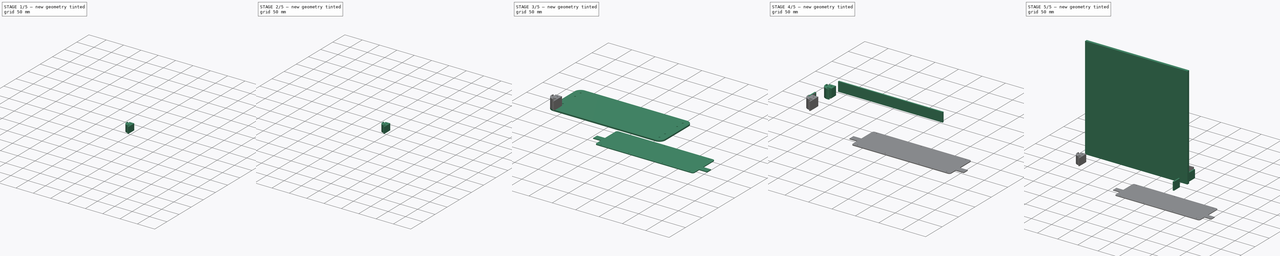
[diagram: build sequence overview — one tinted view per stage of 5, left to right]
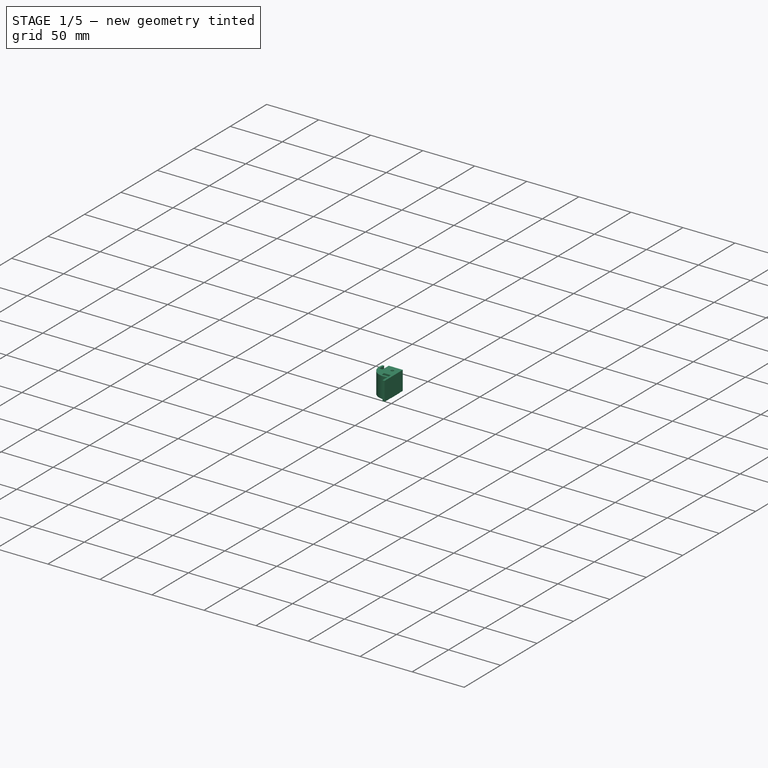
[diagram: stage 1 of 5 — iso view after this stage's code; geometry added in this stage tinted green]
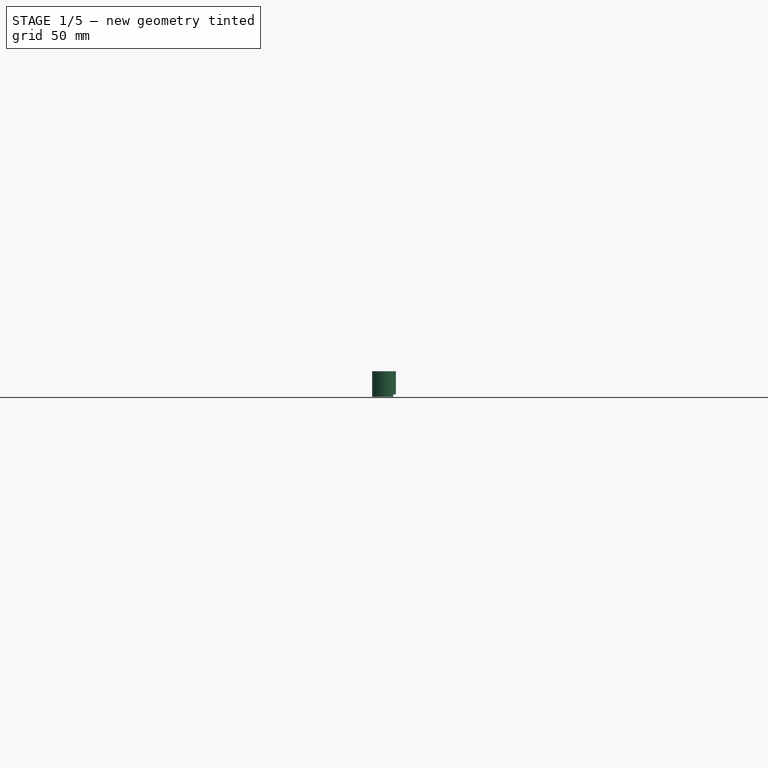
[diagram: stage 1 of 5 — front view after this stage's code; geometry added in this stage tinted green]
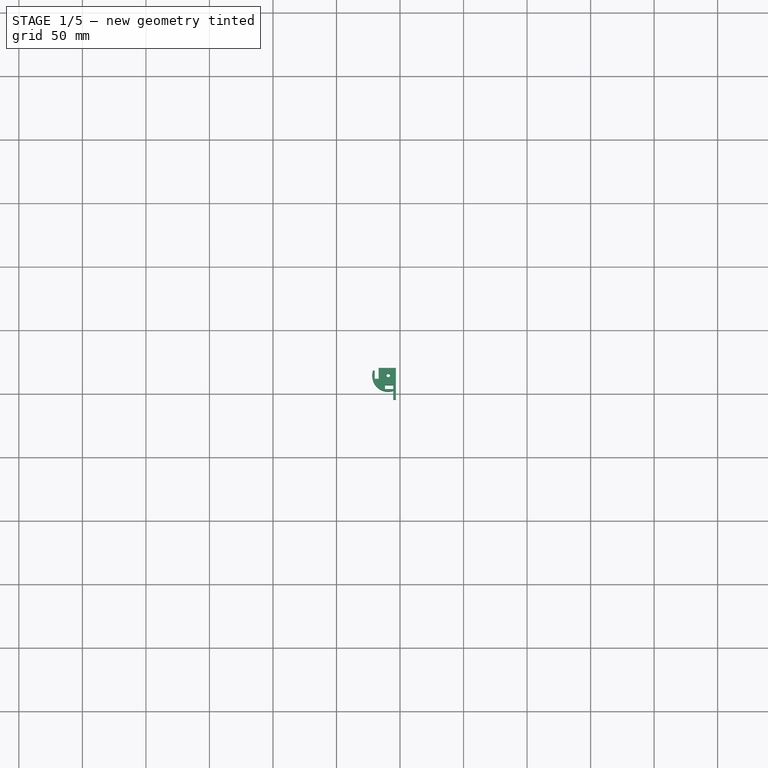
[diagram: stage 1 of 5 — top view after this stage's code; geometry added in this stage tinted green]
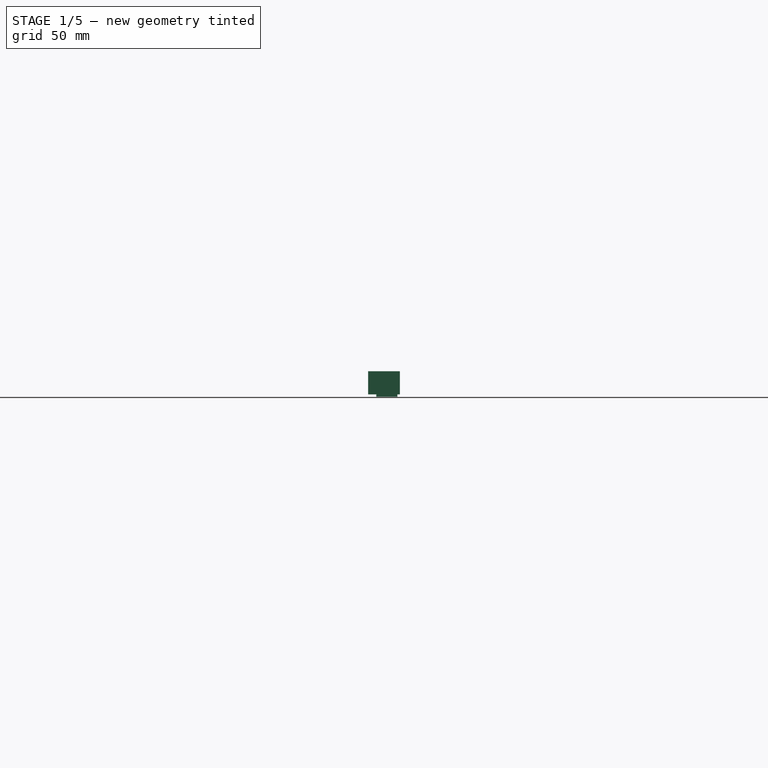
[diagram: stage 1 of 5 — right view after this stage's code; geometry added in this stage tinted green]
FCSTD DOCUMENT  (FreeCAD 0.19R22611 (Git))
Label: mockup
License: All rights reserved
LicenseURL: http://en.wikipedia.org/wiki/All_rights_reserved
objects: Part::Feature×139, Sketcher::SketchObject×19, PartDesign::Pad×18, PartDesign::Body×12, PartDesign::ShapeBinder×10, App::Part×7, Part::Mirroring×4, Part::FeaturePython×1, PartDesign::CoordinateSystem×1
note: 222 computed .brp shape members not serialized (recipe doc carries the construction recipe); baked Part::Feature solids carry a one-line shape summary decoded from their .brp

FEATURE [PartDesign::Body] Body010  label="Corner_FL003"
  Group = -> [Sketch012,ShapeBinder007,Pad013,Sketch013,Pad014]
  Placement = pos=(-73.66,-74.66,0) rot=(0,0,1;-1.5708rad)
  Tip = -> Pad014
FEATURE [Sketcher::SketchObject] Sketch014
  MapMode = 5
  Support = -> [XY_Plane148]
  sketch-geometry (12):
    g0: ArcOfCircle CenterX=-109.22 CenterY=-35.56 CenterZ=0 NormalX=0 NormalY=0 NormalZ=1 AngleXU=0 Radius=12.7 StartAngle=2.82779 EndAngle=5.02619
    g1: LineSegment StartX=-121.3 StartY=-31.6398 StartZ=0 EndX=-119.9 EndY=-31.6398 EndZ=0
    g2: LineSegment StartX=-116.8 StartY=-31.6398 StartZ=0 EndX=-116.8 EndY=-38.1398 EndZ=0
    g3: LineSegment StartX=-116.8 StartY=-38.1398 StartZ=0 EndX=-119.9 EndY=-38.1398 EndZ=0
    g4: LineSegment StartX=-119.9 StartY=-38.1398 StartZ=0 EndX=-119.9 EndY=-31.6398 EndZ=0
    g5: LineSegment StartX=-105.3 StartY=-43.1398 StartZ=0 EndX=-111.8 EndY=-43.1398 EndZ=0
    g6: LineSegment StartX=-111.8 StartY=-43.1398 StartZ=0 EndX=-111.8 EndY=-46.2398 EndZ=0
    g7: LineSegment StartX=-111.8 StartY=-46.2398 StartZ=0 EndX=-105.3 EndY=-46.2398 EndZ=0
    g8: LineSegment StartX=-105.3 StartY=-46.2398 StartZ=0 EndX=-105.3 EndY=-47.6398 EndZ=0
    g9: LineSegment StartX=-116.8 StartY=-31.6398 StartZ=0 EndX=-105.3 EndY=-31.6398 EndZ=0
    g10: LineSegment StartX=-105.3 StartY=-31.6398 StartZ=0 EndX=-105.3 EndY=-43.1398 EndZ=0
    g11: Circle CenterX=-109.22 CenterY=-35.56 CenterZ=0 NormalX=0 NormalY=0 NormalZ=1 AngleXU=0 Radius=1.4
  constraints (32):
    c: Horizontal(g1)
    c: Coincident(g0,g1)
    c: Coincident(g0,g8)
    c: DistanceX(g1,g9) = 16
    c: Coincident(g2,g3)
    c: Coincident(g3,g4)
    c: Horizontal(g3)
    c: Vertical(g2)
    c: Vertical(g4)
    c: Coincident(g5,g6)
    c: Coincident(g6,g7)
    c: Horizontal(g5)
    c: Horizontal(g7)
    c: Vertical(g6)
    c: Equal(g6,g3)
    c: DistanceY(g6,g6) = 3.1
    c: Equal(g2,g5)
    c: Coincident(g8,g7)
    c: Coincident(g1,g4)
    c: Coincident(g9,g2)
    c: Tangent(g1,g9)
    c: DistanceY(g0,g9) = 16
    c: DistanceX(g2,g9) = 11.5
    c: DistanceY(g2,g2) = 6.5
    c: Coincident(g10,g9)
    c: Coincident(g10,g5)
    c: Vertical(g10)
    c: DistanceY(g5,g9) = 11.5
    c: Vertical(g8)
    c: Equal(g5,g7)
    c: Coincident(g11,g0)
    c: Radius(g11) = 1.4
FEATURE [PartDesign::ShapeBinder] ShapeBinder008
  TraceSupport = false
FEATURE [PartDesign::Pad] Pad015
  Direction = (1,1,1)
  Length = 20
  Length2 = 100
  Profile = -> Sketch014
  Type = 0
FEATURE [PartDesign::Body] Body011  label="Corner_FL004"
  Group = -> [Sketch014,ShapeBinder008,Pad015,Sketch015,Pad016]
  Placement = pos=(-1.0175e-11,-1,0) rot=(0,0,1;3.14159rad)
  Tip = -> Pad016
FEATURE [Sketcher::SketchObject] Sketch016
  MapMode = 5
  Support = -> [XY_Plane148]
  sketch-geometry (12):
    g0: ArcOfCircle CenterX=-109.22 CenterY=-35.56 CenterZ=0 NormalX=0 NormalY=0 NormalZ=1 AngleXU=0 Radius=12.7 StartAngle=3.14159 EndAngle=5.02104
    g1: LineSegment StartX=-105.362 StartY=-43.1598 StartZ=0 EndX=-111.862 EndY=-43.1598 EndZ=0
    g2: LineSegment StartX=-111.862 StartY=-43.1598 StartZ=0 EndX=-111.862 EndY=-46.2598 EndZ=0
    g3: LineSegment StartX=-111.862 StartY=-46.2598 StartZ=0 EndX=-105.362 EndY=-46.2598 EndZ=0
    g4: LineSegment StartX=-105.362 StartY=-46.2598 StartZ=0 EndX=-105.362 EndY=-47.6598 EndZ=0
    g5: LineSegment StartX=-105.362 StartY=-31.6598 StartZ=0 EndX=-105.362 EndY=-43.1598 EndZ=0
    g6: Circle CenterX=-109.22 CenterY=-35.56 CenterZ=0 NormalX=0 NormalY=0 NormalZ=1 AngleXU=0 Radius=1.4
    g7: LineSegment StartX=-105.325 StartY=-31.6987 StartZ=0 EndX=-105.325 EndY=-26.1987 EndZ=0
    g8: ArcOfCircle CenterX=-106.125 CenterY=-26.1987 CenterZ=0 NormalX=0 NormalY=0 NormalZ=1 AngleXU=0 Radius=0.8 StartAngle=0 EndAngle=1.62712
    g9: LineSegment StartX=-106.17 StartY=-25.4 StartZ=0 EndX=-121.92 EndY=-25.4 EndZ=0
    g10: LineSegment StartX=-121.92 StartY=-25.4 StartZ=0 EndX=-121.92 EndY=-35.56 EndZ=0
    g11: LineSegment [constr] StartX=-109.22 StartY=-35.56 StartZ=0 EndX=-121.92 EndY=-35.56 EndZ=0
  constraints (34):
    c: Coincident(g0,g4)
    c: Coincident(g1,g2)
    c: Coincident(g2,g3)
    c: Horizontal(g1)
    c: Horizontal(g3)
    c: Vertical(g2)
    c: DistanceY(g2,g2) = 3.1
    c: Coincident(g4,g3)
    c: DistanceY(g0,g5) = 16
    c: Coincident(g5,g1)
    c: Vertical(g5)
    c: DistanceY(g1,g5) = 11.5
    c: Vertical(g4)
    c: Equal(g1,g3)
    c: Coincident(g6,g0)
    c: Radius(g6) = 1.4
    c: Vertical(g7)
    c: Tangent(g7,g8) = -1.5708
    c: Coincident(g8,g9)
    c: Horizontal(g9)
    c: Coincident(g9,g10)
    c: Vertical(g10)
    c: Coincident(g0,g10)
    c: DistanceY(g7,g7) = 5.5
    c: Radius(g8) = 0.8
    c: DistanceX(g9,g9) = 15.75
    c: DistanceY(g10,g10) = 10.16
    c: Coincident(g11,g0)
    c: Coincident(g11,g0)
    c: Horizontal(g11)
    c: DistanceX(g-2,g0) = -109.22
    c: DistanceY(g-1,g0) = -35.56
    c: DistanceX(g1,g1) = 6.5
    c: Radius(g0) = 12.7
FEATURE [PartDesign::ShapeBinder] ShapeBinder009
  TraceSupport = false
FEATURE [PartDesign::Pad] Pad017
  Direction = (1,1,1)
  Length = 20
  Length2 = 100
  Profile = -> Sketch016
  Type = 0
FEATURE [Sketcher::SketchObject] Sketch018
  MapMode = 5
  Support = -> [XY_Plane148]
  sketch-geometry (12):
    g0: ArcOfCircle CenterX=-109.22 CenterY=-35.56 CenterZ=0 NormalX=0 NormalY=0 NormalZ=1 AngleXU=0 Radius=12.7 StartAngle=2.82779 EndAngle=5.02619
    g1: LineSegment StartX=-121.3 StartY=-31.6398 StartZ=0 EndX=-119.9 EndY=-31.6398 EndZ=0
    g2: LineSegment StartX=-116.8 StartY=-31.6398 StartZ=0 EndX=-116.8 EndY=-38.1398 EndZ=0
    g3: LineSegment StartX=-116.8 StartY=-38.1398 StartZ=0 EndX=-119.9 EndY=-38.1398 EndZ=0
    g4: LineSegment StartX=-119.9 StartY=-38.1398 StartZ=0 EndX=-119.9 EndY=-31.6398 EndZ=0
    g5: LineSegment StartX=-105.3 StartY=-43.1398 StartZ=0 EndX=-111.8 EndY=-43.1398 EndZ=0
    g6: LineSegment StartX=-111.8 StartY=-43.1398 StartZ=0 EndX=-111.8 EndY=-46.2398 EndZ=0
    g7: LineSegment StartX=-111.8 StartY=-46.2398 StartZ=0 EndX=-105.3 EndY=-46.2398 EndZ=0
    g8: LineSegment StartX=-105.3 StartY=-46.2398 StartZ=0 EndX=-105.3 EndY=-47.6398 EndZ=0
    g9: LineSegment StartX=-116.8 StartY=-31.6398 StartZ=0 EndX=-105.3 EndY=-31.6398 EndZ=0
    g10: LineSegment StartX=-105.3 StartY=-31.6398 StartZ=0 EndX=-105.3 EndY=-43.1398 EndZ=0
    g11: Circle CenterX=-109.22 CenterY=-35.56 CenterZ=0 NormalX=0 NormalY=0 NormalZ=1 AngleXU=0 Radius=1.4
  constraints (32):
    c: Horizontal(g1)
    c: Coincident(g0,g1)
    c: Coincident(g0,g8)
    c: DistanceX(g1,g9) = 16
    c: Coincident(g2,g3)
    c: Coincident(g3,g4)
    c: Horizontal(g3)
    c: Vertical(g2)
    c: Vertical(g4)
    c: Coincident(g5,g6)
    c: Coincident(g6,g7)
    c: Horizontal(g5)
    c: Horizontal(g7)
    c: Vertical(g6)
    c: Equal(g6,g3)
    c: DistanceY(g6,g6) = 3.1
    c: Equal(g2,g5)
    c: Coincident(g8,g7)
    c: Coincident(g1,g4)
    c: Coincident(g9,g2)
    c: Tangent(g1,g9)
    c: DistanceY(g0,g9) = 16
    c: DistanceX(g2,g9) = 11.5
    c: DistanceY(g2,g2) = 6.5
    c: Coincident(g10,g9)
    c: Coincident(g10,g5)
    c: Vertical(g10)
    c: DistanceY(g5,g9) = 11.5
    c: Vertical(g8)
    c: Equal(g5,g7)
    c: Coincident(g11,g0)
    c: Radius(g11) = 1.4
FEATURE [PartDesign::ShapeBinder] ShapeBinder010
  TraceSupport = false
FEATURE [PartDesign::Pad] Pad019
  Direction = (1,1,1)
  Length = 20
  Length2 = 100
  Profile = -> Sketch018
  Type = 0
FEATURE [Sketcher::SketchObject] Sketch019
  ExternalGeometry = -> [Pad019]
  MapMode = 5
  Placement = pos=(0,0,20) rot=(0,0,1;0rad)
  Support = -> [Pad019]
  sketch-geometry (6):
    g0: LineSegment StartX=-116.8 StartY=-31.6398 StartZ=0 EndX=-105.3 EndY=-31.6398 EndZ=0
    g1: LineSegment StartX=-105.3 StartY=-31.6398 StartZ=0 EndX=-105.3 EndY=-43.1398 EndZ=0
    g2: LineSegment StartX=-105.3 StartY=-43.1398 StartZ=0 EndX=-103.3 EndY=-43.1398 EndZ=0
    g3: LineSegment StartX=-103.3 StartY=-43.1398 StartZ=0 EndX=-103.3 EndY=-29.6398 EndZ=0
    g4: LineSegment StartX=-103.3 StartY=-29.6398 StartZ=0 EndX=-116.8 EndY=-29.6398 EndZ=0
    g5: LineSegment StartX=-116.8 StartY=-29.6398 StartZ=0 EndX=-116.8 EndY=-31.6398 EndZ=0
  constraints (16):
    c: Coincident(g0,g1)
    c: Vertical(g1)
    c: Coincident(g1,g2)
    c: Horizontal(g2)
    c: Coincident(g2,g3)
    c: Vertical(g3)
    c: Coincident(g3,g4)
    c: Horizontal(g4)
    c: Coincident(g4,g5)
    c: Coincident(g5,g0)
    c: Vertical(g5)
    c: Equal(g5,g2)
    c: Equal(g0,g1)
    c: DistanceY(g5,g5) = 2
    c: Coincident(g0,g-3)
    c: Coincident(g0,g-3)
FEATURE [PartDesign::Pad] Pad020
  BaseFeature = -> Pad019
  Direction = (1,1,1)
  Length = 18.2
  Length2 = 100
  Profile = -> Sketch019
  Refine = true
  Reversed = true
  Type = 0
FEATURE [PartDesign::Body] Body013  label="Corner_FL006"
  Group = -> [Sketch018,ShapeBinder010,Pad019,Sketch019,Pad020]
  Tip = -> Pad020
FEATURE [Sketcher::SketchObject] Sketch017
  ExternalGeometry = -> [Pad017]
  MapMode = 5
  Placement = pos=(0,0,20) rot=(0,0,1;0rad)
  Support = -> [Pad017]
  sketch-geometry (6):
    g0: LineSegment StartX=-105.3 StartY=-31.6398 StartZ=0 EndX=-105.3 EndY=-43.1398 EndZ=0
    g1: LineSegment StartX=-105.3 StartY=-43.1398 StartZ=0 EndX=-105.3 EndY=-54.6398 EndZ=0
    g2: LineSegment StartX=-105.3 StartY=-54.6398 StartZ=0 EndX=-103.3 EndY=-54.6398 EndZ=0
    g3: LineSegment StartX=-103.3 StartY=-54.6398 StartZ=0 EndX=-103.3 EndY=-29.6398 EndZ=0
    g4: LineSegment StartX=-103.3 StartY=-29.6398 StartZ=0 EndX=-105.3 EndY=-29.6398 EndZ=0
    g5: LineSegment StartX=-105.3 StartY=-29.6398 StartZ=0 EndX=-105.3 EndY=-31.6398 EndZ=0
  constraints (16):
    c: Coincident(g0,g1)
    c: Vertical(g1)
    c: Coincident(g1,g2)
    c: Horizontal(g2)
    c: Coincident(g2,g3)
    c: Vertical(g3)
    c: Coincident(g3,g4)
    c: Horizontal(g4)
    c: Coincident(g4,g5)
    c: Coincident(g5,g0)
    c: Vertical(g5)
    c: Equal(g5,g2)
    c: Equal(g0,g1)
    c: DistanceY(g5,g5) = 2
    c: Coincident(g0,g-3)
    c: Coincident(g0,g-3)
FEATURE [PartDesign::Pad] Pad018
  BaseFeature = -> Pad017
  Direction = (1,1,1)
  Length = 18.2
  Length2 = 100
  Profile = -> Sketch017
  Refine = true
  Reversed = true
  Type = 0
FEATURE [PartDesign::Body] Body012  label="Corner_FL005"
  Group = -> [Sketch016,ShapeBinder009,Pad017,Sketch017,Pad018]
  Placement = pos=(0,19,0) rot=(0,0,1;0rad)
  Tip = -> Pad018
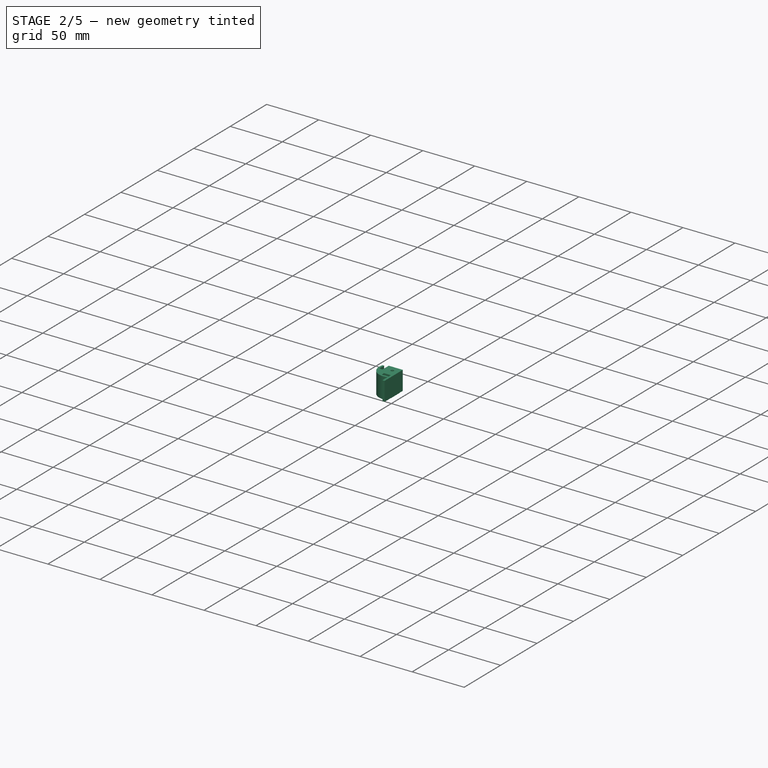
[diagram: stage 2 of 5 — iso view after this stage's code; geometry added in this stage tinted green]
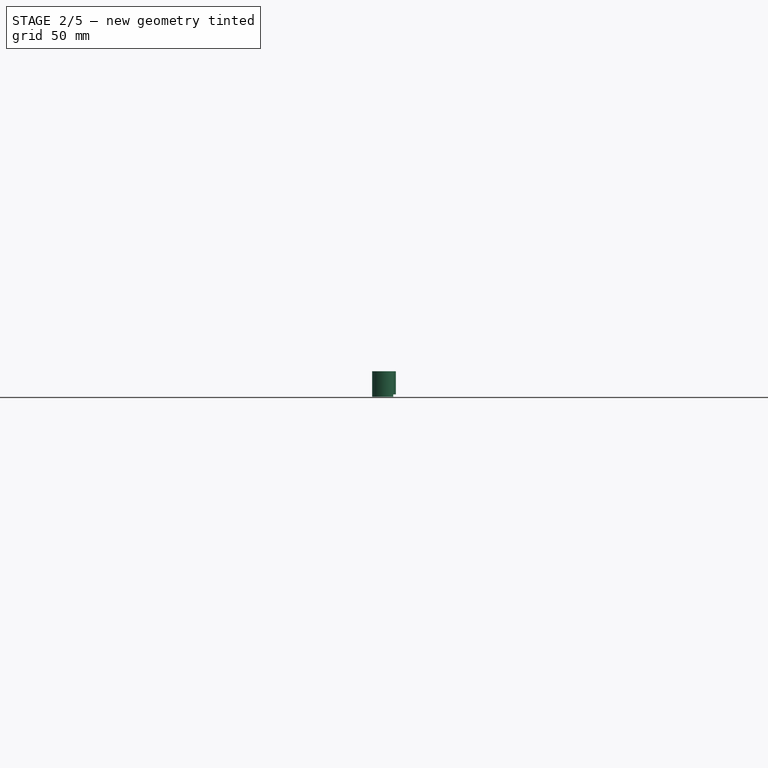
[diagram: stage 2 of 5 — front view after this stage's code; geometry added in this stage tinted green]
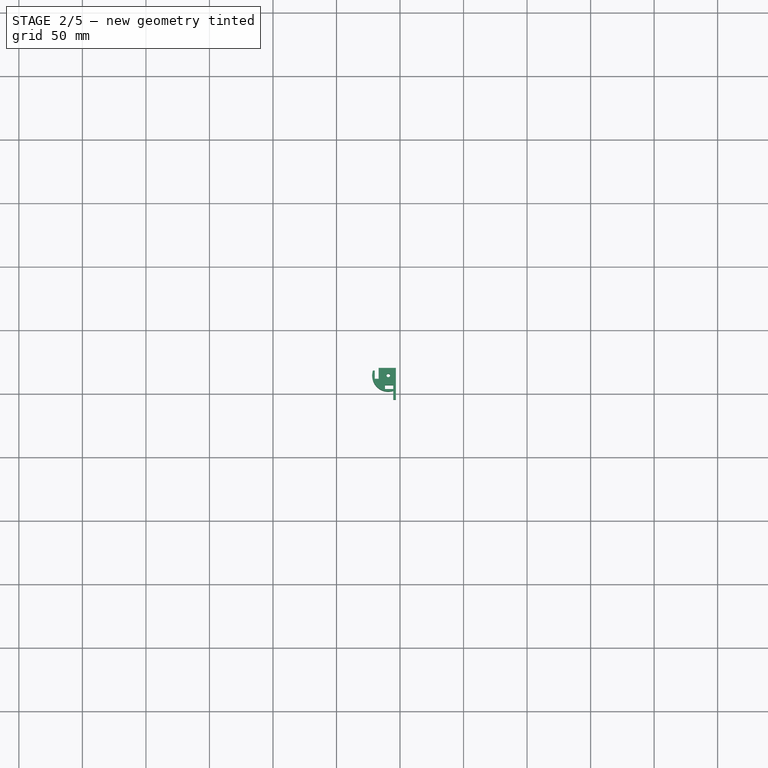
[diagram: stage 2 of 5 — top view after this stage's code; geometry added in this stage tinted green]
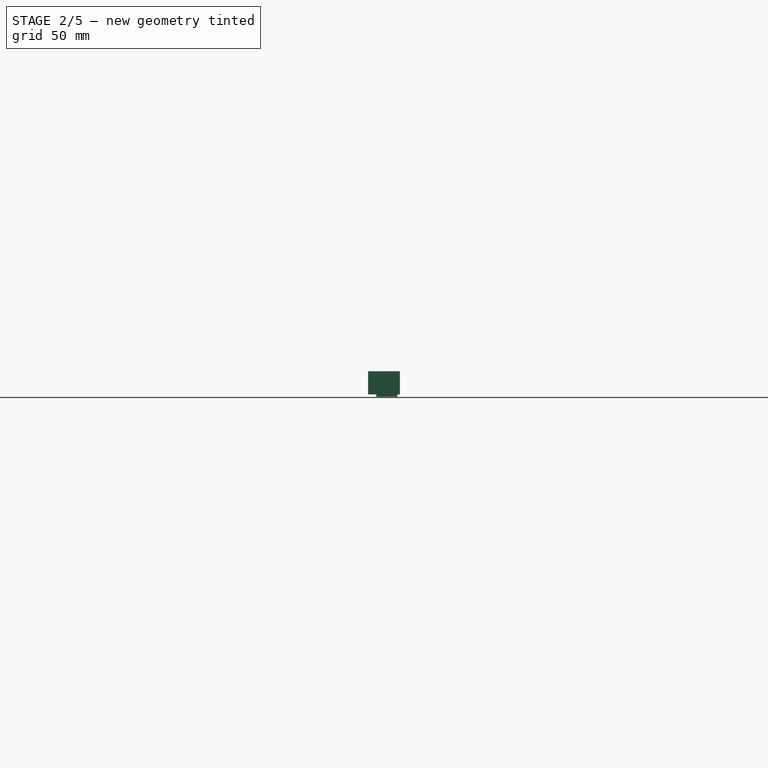
[diagram: stage 2 of 5 — right view after this stage's code; geometry added in this stage tinted green]
FEATURE [PartDesign::Body] Body008  label="PCB"
  Group = -> [PCB_Sketch_a345,Pad009]
  Origin = -> Origin135
  Placement = pos=(-139.7,101.6,0) rot=(0,0,1;0rad)
  Tip = -> Pad009
  expr: .Placement.Base.x = -5.5"
FEATURE [PartDesign::CoordinateSystem] Local_CS_a344
  AttacherType = Attacher::AttachEngine3D
FEATURE [Part::Feature] Pcb_a344
  shape: bbox 243.8 x 66.2 x 1.6 mm, 120 faces (baked)
FEATURE [Sketcher::SketchObject] PCB_Sketch_a344
  sketch-geometry (22):
    g0: LineSegment StartX=139.7 StartY=-59.5 StartZ=0 EndX=240.7 EndY=-59.5 EndZ=0
    g1: LineSegment StartX=244.7 StartY=-94.5 StartZ=0 EndX=244.7 EndY=-63.5 EndZ=0
    g2: LineSegment StartX=245.7 StartY=-95.5 StartZ=0 EndX=261.62 EndY=-95.5 EndZ=0
    g3: LineSegment StartX=261.62 StartY=-107.7 StartZ=0 EndX=261.62 EndY=-95.5 EndZ=0
    g4: LineSegment StartX=245.7 StartY=-107.7 StartZ=0 EndX=261.62 EndY=-107.7 EndZ=0
    g5: LineSegment StartX=244.7 StartY=-108.7 StartZ=0 EndX=244.7 EndY=-121.7 EndZ=0
    g6: LineSegment StartX=139.7 StartY=-125.7 StartZ=0 EndX=240.7 EndY=-125.7 EndZ=0
    g7: LineSegment StartX=38.7 StartY=-125.7 StartZ=0 EndX=139.7 EndY=-125.7 EndZ=0
    g8: LineSegment StartX=34.7 StartY=-108.7 StartZ=0 EndX=34.7 EndY=-121.7 EndZ=0
    g9: LineSegment StartX=17.78 StartY=-107.7 StartZ=0 EndX=33.7 EndY=-107.7 EndZ=0
    g10: LineSegment StartX=38.7 StartY=-59.5 StartZ=0 EndX=139.7 EndY=-59.5 EndZ=0
    g11: LineSegment StartX=34.7 StartY=-94.5 StartZ=0 EndX=34.7 EndY=-63.5 EndZ=0
    g12: LineSegment StartX=17.78 StartY=-95.5 StartZ=0 EndX=33.7 EndY=-95.5 EndZ=0
    g13: LineSegment StartX=17.78 StartY=-107.7 StartZ=0 EndX=17.78 EndY=-95.5 EndZ=0
    g14: ArcOfCircle CenterX=33.7 CenterY=-94.5 CenterZ=0 NormalX=0 NormalY=0 NormalZ=1 AngleXU=0 Radius=1 StartAngle=4.71239 EndAngle=6.28319
    g15: ArcOfCircle CenterX=33.7 CenterY=-108.7 CenterZ=0 NormalX=0 NormalY=0 NormalZ=1 AngleXU=0 Radius=1 StartAngle=0 EndAngle=1.5708
    g16: ArcOfCircle CenterX=245.7 CenterY=-94.5 CenterZ=0 NormalX=0 NormalY=0 NormalZ=1 AngleXU=0 Radius=1 StartAngle=3.14159 EndAngle=4.71239
    g17: ArcOfCircle CenterX=245.7 CenterY=-108.7 CenterZ=0 NormalX=0 NormalY=0 NormalZ=1 AngleXU=0 Radius=1 StartAngle=1.5708 EndAngle=3.14159
    g18: ArcOfCircle CenterX=38.7 CenterY=-63.5 CenterZ=0 NormalX=0 NormalY=0 NormalZ=1 AngleXU=0 Radius=4 StartAngle=1.5708 EndAngle=3.14159
    g19: ArcOfCircle CenterX=240.7 CenterY=-63.5 CenterZ=0 NormalX=0 NormalY=0 NormalZ=1 AngleXU=0 Radius=4 StartAngle=0 EndAngle=1.5708
    g20: ArcOfCircle CenterX=38.7 CenterY=-121.7 CenterZ=0 NormalX=0 NormalY=0 NormalZ=1 AngleXU=0 Radius=4 StartAngle=3.14159 EndAngle=4.71239
    g21: ArcOfCircle CenterX=240.7 CenterY=-121.7 CenterZ=0 NormalX=0 NormalY=0 NormalZ=1 AngleXU=0 Radius=4 StartAngle=4.71239 EndAngle=6.28319
  constraints (22):
    c: Coincident(g13,g9)
    c: Coincident(g13,g12)
    c: Coincident(g15,g9)
    c: Coincident(g14,g12)
    c: Coincident(g20,g8)
    c: Coincident(g15,g8)
    c: Coincident(g14,g11)
    c: Coincident(g18,g11)
    c: Coincident(g7,g20)
    c: Coincident(g10,g18)
    c: Coincident(g7,g6)
    c: Coincident(g10,g0)
    c: Coincident(g6,g21)
    c: Coincident(g0,g19)
    c: Coincident(g5,g21)
    c: Coincident(g5,g17)
    c: Coincident(g16,g1)
    c: Coincident(g19,g1)
    c: Coincident(g4,g17)
    c: Coincident(g16,g2)
    c: Coincident(g4,g3)
    c: Coincident(g3,g2)
FEATURE [App::Part] Board_Geoms_a344
  Group = -> [Local_CS_a344,Pcb_a344,PCB_Sketch_a344]
  Origin = -> Origin136
FEATURE [Part::Feature] Part__Feature  label="sparkfun_apds_9960"
  shape: bbox 15.24 x 21.55 x 16.01 mm, 533 faces (baked)
FEATURE [Part::Feature] Part__Feature001  label="sparkfun_apds_9961"
  shape: bbox 2.36 x 1.15 x 1.1 mm, 21 faces (baked)
FEATURE [Part::Feature] Part__Feature002  label="sparkfun_apds_9962"
  shape: bbox 2.36 x 3.835 x 1.35 mm, 67 faces (baked)
FEATURE [App::Part] sparkfun_apds_9960  label="P5_sparkfun_apds_9963_5FD48506"
  Group = -> [Part__Feature,Part__Feature001,Part__Feature002]
  Origin = -> Origin144
  Placement = pos=(127,-118.11,0) rot=(0,0,-1;1.5708rad)
FEATURE [Part::Feature] Part__Feature003  label="USB4110_GF_A018_cp"
  shape: bbox 0.2 x 0.6 x 0.15 mm, 6 faces (baked)
FEATURE [Part::Feature] Part__Feature004  label="USB4110_GF_A018_cp001"
  shape: bbox 0.2 x 0.6 x 0.15 mm, 6 faces (baked)
FEATURE [Part::Feature] Part__Feature005  label="USB4110_GF_A018_cp002"
  shape: bbox 0.2 x 0.6 x 0.15 mm, 6 faces (baked)
FEATURE [Part::Feature] Part__Feature006  label="USB4110_GF_A018_cp003"
  shape: bbox 0.2 x 0.6 x 0.15 mm, 6 faces (baked)
FEATURE [Part::Feature] Part__Feature007  label="USB4110_GF_A018_cp004"
  shape: bbox 0.2 x 0.6 x 0.15 mm, 6 faces (baked)
FEATURE [Part::Feature] Part__Feature008  label="USB4110_GF_A018_cp005"
  shape: bbox 0.2 x 0.6 x 0.15 mm, 6 faces (baked)
FEATURE [Part::Feature] Part__Feature009  label="USB4110_GF_A018_cp006"
  shape: bbox 0.2 x 0.6 x 0.15 mm, 6 faces (baked)
FEATURE [Part::Feature] Part__Feature010  label="USB4110_GF_A018_cp007"
  shape: bbox 0.2 x 0.6 x 0.15 mm, 6 faces (baked)
FEATURE [Part::Feature] Part__Feature011  label="USB4110_GF_A018_cp008"
  shape: bbox 0.2 x 0.6 x 0.15 mm, 6 faces (baked)
FEATURE [Part::Feature] Part__Feature012  label="USB4110_GF_A018_cp009"
  shape: bbox 0.2 x 0.6 x 0.15 mm, 6 faces (baked)
FEATURE [Part::Feature] Part__Feature013  label="USB4110_GF_A018_cp010"
  shape: bbox 0.2 x 0.6 x 0.15 mm, 6 faces (baked)
FEATURE [Part::Feature] Part__Feature014  label="USB4110_GF_A018_cp011"
  shape: bbox 0.2 x 0.6 x 0.15 mm, 6 faces (baked)
FEATURE [Part::Feature] Part__Feature015  label="USB4110_GF_A018_cp012"
  shape: bbox 0.2 x 0.6 x 0.15 mm, 6 faces (baked)
FEATURE [Part::Feature] Part__Feature016  label="USB4110_GF_A018_cp013"
  shape: bbox 0.2 x 0.6 x 0.15 mm, 6 faces (baked)
FEATURE [Part::Feature] Part__Feature017  label="USB4110_GF_A018_cp014"
  shape: bbox 0.2 x 0.6 x 0.15 mm, 6 faces (baked)
FEATURE [Part::Feature] Part__Feature018  label="USB4110_GF_A018_cp015"
  shape: bbox 0.2 x 0.6 x 0.15 mm, 6 faces (baked)
FEATURE [Part::Feature] Part__Feature019  label="USB4110_GF_A018_cp016"
  shape: bbox 8.94 x 7.05 x 3.66 mm, 301 faces (baked)
FEATURE [Part::Feature] Part__Feature020  label="USB4110_GF_A018_cp017"
  shape: bbox 11.31 x 7.338 x 3.268 mm, 337 faces (baked)
FEATURE [App::Part] USB4110_GF_A018_cp  label="J2_USB4110_GF_A018_cp018_5FA48436"
  Group = -> [Part__Feature003,Part__Feature004,Part__Feature005,Part__Feature006,Part__Feature007,Part__Feature008,Part__Feature009,Part__Feature010,Part__Feature011,Part__Feature012,Part__Feature013,Part__Feature014,Part__Feature015,Part__Feature016,Part__Feature017,Part__Feature018,Part__Feature019,Part__Feature020]
  Origin = -> Origin145
  Placement = pos=(154.94,-65.405,0) rot=(0,0,1;3.14159rad)
FEATURE [Part::Feature] Shape  label="C20_C_0805_2012Metric_5FA49978"
  Placement = pos=(176.53,-69.85,0) rot=(0,0,-1;1.5708rad)
  shape: bbox 1.25 x 2 x 1.25 mm, 28 faces (baked)
FEATURE [Part::Feature] Shape001  label="U2_SOT_223_5FA1A8F4"
  Placement = pos=(90.17,-80.01,0) rot=(0,0,1;3.14159rad)
  shape: bbox 7 x 6.5 x 1.7 mm, 78 faces (baked)
FEATURE [Part::Feature] Shape002  label="R8_R_0805_2012Metric_5FA1C689"
  Placement = pos=(198.882,-65.786,0) rot=(0,0,1;1.5708rad)
  shape: bbox 1.2 x 2 x 0.45 mm, 26 faces (baked)
FEATURE [Part::Feature] Shape003  label="D2_LED_WS2812B_PLCC4_50x50mm_P32mm_5FD31A96"
  Placement = pos=(21.59,-104.775,0) rot=(0,0,1;0rad)
  shape: bbox 5.4 x 5 x 1.6 mm, 68 faces (baked)
FEATURE [Part::Feature] Shape004  label="D33_D_SMB_5FD3381D"
  Placement = pos=(143.51,-80.01,0) rot=(0,0,1;1.5708rad)
  shape: bbox 3.55 x 5.3 x 2.15 mm, 41 faces (baked)
FEATURE [Part::Feature] Part__Feature021  label="barrel_jack_DC_005_5A_2_5_SMT"
  shape: bbox 1.5 x 1.8 x 0.9949 mm, 1656 faces, 0 solids (baked)
FEATURE [Part::Feature] Part__Feature022  label="barrel_jack_DC_005_5A_2_5_SMT001"
  shape: bbox 1.5 x 1.8 x 2.5 mm, 1382 faces, 0 solids (baked)
FEATURE [Part::Feature] Part__Feature023  label="barrel_jack_DC_005_5A_2_5_SMT002"
  shape: bbox 14.8 x 10.8 x 12.4 mm, 11202 faces, 0 solids (baked)
FEATURE [App::Part] barrel_jack_DC_005_5A_2_5_SMT  label="J3_barrel_jack_DC_005_5A_2_5_SMT003_5FD0EC4E"
  Group = -> [Part__Feature021,Part__Feature022,Part__Feature023]
  Origin = -> Origin146
  Placement = pos=(124.46,-57.15,0) rot=(0,0,-1;1.5708rad)
FEATURE [Part::Feature] Shape005  label="C11_C_0805_2012Metric_5FD385E0"
  Placement = pos=(44.45,-88.9,0) rot=(0,0,-1;1.5708rad)
  shape: bbox 1.25 x 2 x 1.25 mm, 28 faces (baked)
FEATURE [Part::Feature] Shape006  label="C18_C_0805_2012Metric_5FD24D56"
  Placement = pos=(133.35,-114.3,0) rot=(0,0,1;1.5708rad)
  shape: bbox 1.25 x 2 x 1.25 mm, 28 faces (baked)
FEATURE [Part::Feature] Shape007  label="C10_C_0805_2012Metric_5FA1BFFC"
  Placement = pos=(213.995,-64.77,0) rot=(0,0,1;3.14159rad)
  shape: bbox 2 x 1.25 x 1.25 mm, 28 faces (baked)
FEATURE [Part::Feature] Shape008  label="C6_C_0805_2012Metric_5FD4063E"
  Placement = pos=(202.565,-73.787,0) rot=(0,0,1;3.14159rad)
  shape: bbox 2 x 1.25 x 1.25 mm, 28 faces (baked)
FEATURE [Part::Feature] Shape009  label="C9_C_0805_2012Metric_5FA1BE46"
  Placement = pos=(168.91,-69.85,0) rot=(0,0,-1;1.5708rad)
  shape: bbox 1.25 x 2 x 1.25 mm, 28 faces (baked)
FEATURE [Part::Feature] Shape010  label="R1_R_0805_2012Metric_5FD45E1C"
  Placement = pos=(179.07,-69.85,0) rot=(0,0,-1;1.5708rad)
  shape: bbox 1.2 x 2 x 0.45 mm, 26 faces (baked)
FEATURE [Part::Feature] Shape011  label="C2_C_0805_2012Metric_5FA1BA53"
  Placement = pos=(185.42,-69.85,0) rot=(0,0,1;1.5708rad)
  shape: bbox 1.25 x 2 x 1.25 mm, 28 faces (baked)
FEATURE [Part::Feature] Shape012  label="C3_C_0805_2012Metric_5FD0F856"
  Placement = pos=(196.215,-88.9,0) rot=(0,0,-1;1.5708rad)
  shape: bbox 1.25 x 2 x 1.25 mm, 28 faces (baked)
FEATURE [Part::Feature] Shape013  label="C4_C_0805_2012Metric_5FD0F826"
  Placement = pos=(193.675,-88.9,0) rot=(0,0,-1;1.5708rad)
  shape: bbox 1.25 x 2 x 1.25 mm, 28 faces (baked)
FEATURE [Part::Feature] Shape014  label="C5_C_0805_2012Metric_5FD405BA"
  Placement = pos=(202.565,-80.264,0) rot=(0,0,1;0rad)
  shape: bbox 2 x 1.25 x 1.25 mm, 28 faces (baked)
FEATURE [Part::Feature] Shape015  label="C8_C_0805_2012Metric_5FA1BAD7"
  Placement = pos=(80.01,-80.01,0) rot=(0,0,1;3.14159rad)
  shape: bbox 2 x 1.25 x 1.25 mm, 28 faces (baked)
FEATURE [Part::Feature] Shape016  label="D3_LED_WS2812B_PLCC4_50x50mm_P32mm_5FA1A33E"
  Placement = pos=(29.21,-104.775,0) rot=(0,0,1;3.14159rad)
  shape: bbox 5.4 x 5 x 1.6 mm, 68 faces (baked)
FEATURE [Part::Feature] Shape017  label="D4_LED_WS2812B_PLCC4_50x50mm_P32mm_5FA1AF0B"
  Placement = pos=(29.21,-98.425,0) rot=(0,0,1;3.14159rad)
  shape: bbox 5.4 x 5 x 1.6 mm, 68 faces (baked)
FEATURE [Part::Feature] Shape018  label="D10_LED_WS2812B_PLCC4_50x50mm_P32mm_5FA1A6EF"
  Placement = pos=(52.07,-104.775,0) rot=(0,0,1;0rad)
  shape: bbox 5.4 x 5 x 1.6 mm, 68 faces (baked)
FEATURE [Part::Feature] Shape019  label="D11_LED_WS2812B_PLCC4_50x50mm_P32mm_5FA1BA8A"
  Placement = pos=(59.69,-104.775,0) rot=(0,0,1;3.14159rad)
  shape: bbox 5.4 x 5 x 1.6 mm, 68 faces (baked)
FEATURE [Part::Feature] Shape020  label="D17_LED_WS2812B_PLCC4_50x50mm_P32mm_5FA1BB86"
  Placement = pos=(82.55,-98.425,0) rot=(0,0,1;0rad)
  shape: bbox 5.4 x 5 x 1.6 mm, 68 faces (baked)
FEATURE [Part::Feature] Shape021  label="D18_LED_WS2812B_PLCC4_50x50mm_P32mm_5FA1B54A"
  Placement = pos=(82.55,-104.775,0) rot=(0,0,1;0rad)
  shape: bbox 5.4 x 5 x 1.6 mm, 68 faces (baked)
FEATURE [Part::Feature] Shape022  label="D19_LED_WS2812B_PLCC4_50x50mm_P32mm_5FD0FC67"
  Placement = pos=(90.17,-104.775,0) rot=(0,0,1;3.14159rad)
  shape: bbox 5.4 x 5 x 1.6 mm, 68 faces (baked)
FEATURE [Part::Feature] Shape023  label="D20_LED_WS2812B_PLCC4_50x50mm_P32mm_5FA1AE42"
  Placement = pos=(90.17,-98.425,0) rot=(0,0,1;3.14159rad)
  shape: bbox 5.4 x 5 x 1.6 mm, 68 faces (baked)
FEATURE [Part::Feature] Shape024  label="D21_LED_WS2812B_PLCC4_50x50mm_P32mm_5FA1B03D"
  Placement = pos=(97.79,-98.425,0) rot=(0,0,1;0rad)
  shape: bbox 5.4 x 5 x 1.6 mm, 68 faces (baked)
FEATURE [Part::Feature] Shape025  label="D22_LED_WS2812B_PLCC4_50x50mm_P32mm_5FA1ADFD"
  Placement = pos=(97.79,-104.775,0) rot=(0,0,1;0rad)
  shape: bbox 5.4 x 5 x 1.6 mm, 68 faces (baked)
FEATURE [Part::Feature] Shape026  label="D23_LED_WS2812B_PLCC4_50x50mm_P32mm_5FA1B26B"
  Placement = pos=(105.41,-104.775,0) rot=(0,0,1;3.14159rad)
  shape: bbox 5.4 x 5 x 1.6 mm, 68 faces (baked)
FEATURE [Part::Feature] Shape027  label="D28_LED_WS2812B_PLCC4_50x50mm_P32mm_5FD3357B"
  Placement = pos=(120.65,-98.425,0) rot=(0,0,1;3.14159rad)
  shape: bbox 5.4 x 5 x 1.6 mm, 68 faces (baked)
FEATURE [Part::Feature] Shape028  label="D29_LED_WS2812B_PLCC4_50x50mm_P32mm_5FD10914"
  Placement = pos=(128.27,-98.425,0) rot=(0,0,1;0rad)
  shape: bbox 5.4 x 5 x 1.6 mm, 68 faces (baked)
FEATURE [Part::Feature] Shape029  label="D30_LED_WS2812B_PLCC4_50x50mm_P32mm_5FA1AA61"
  Placement = pos=(128.27,-104.775,0) rot=(0,0,1;0rad)
  shape: bbox 5.4 x 5 x 1.6 mm, 68 faces (baked)
FEATURE [Part::Feature] Shape030  label="D35_LED_0805_2012Metric_5FA1AD82"
  Placement = pos=(80.01,-77.47,0) rot=(0,0,1;3.14159rad)
  shape: bbox 2 x 1.25 x 1.1 mm, 50 faces (baked)
FEATURE [Part::Feature] Shape031  label="D36_LED_0805_2012Metric_5FA1AAA3"
  Placement = pos=(196.215,-65.786,0) rot=(0,0,1;1.5708rad)
  shape: bbox 1.25 x 2 x 1.1 mm, 50 faces (baked)
FEATURE [Part::Feature] Shape032  label="P1_PinHeader_1x04_P254mm_Vertical_SMD_Pin1Left_5FCFAB4E"
  Placement = pos=(50.8,-78.74,0) rot=(0,0,1;0rad)
  shape: bbox 5 x 10.16 x 9.3 mm, 112 faces (baked)
FEATURE [Part::Feature] Shape033  label="P2_PinHeader_1x06_P254mm_Vertical_SMD_Pin1Left_5FD538B3"
  Placement = pos=(175.26,-63.5,0) rot=(0,0,-1;1.5708rad)
  shape: bbox 15.24 x 5 x 9.3 mm, 166 faces (baked)
FEATURE [Part::Feature] Shape034  label="R2_R_0805_2012Metric_5FD0F886"
  Placement = pos=(175.895,-88.9,0) rot=(0,0,1;1.5708rad)
  shape: bbox 1.2 x 2 x 0.45 mm, 26 faces (baked)
FEATURE [Part::Feature] Shape035  label="R3_R_0805_2012Metric_5FD0F916"
  Placement = pos=(178.435,-88.9,0) rot=(0,0,1;1.5708rad)
  shape: bbox 1.2 x 2 x 0.45 mm, 26 faces (baked)
FEATURE [Part::Feature] Shape036  label="R4_R_0805_2012Metric_5FD0F8E6"
  Placement = pos=(191.135,-88.9,0) rot=(0,0,1;1.5708rad)
  shape: bbox 1.2 x 2 x 0.45 mm, 26 faces (baked)
FEATURE [Part::Feature] Shape037  label="R5_R_0805_2012Metric_5FD2E6A2"
  Placement = pos=(147.955,-71.12,0) rot=(0,0,1;1.5708rad)
  shape: bbox 1.2 x 2 x 0.45 mm, 26 faces (baked)
FEATURE [Part::Feature] Shape038  label="R6_R_0805_2012Metric_5FA4CCC1"
  Placement = pos=(161.925,-71.12,0) rot=(0,0,1;1.5708rad)
  shape: bbox 1.2 x 2 x 0.45 mm, 26 faces (baked)
FEATURE [Part::Feature] Shape039  label="R7_R_0805_2012Metric_5FA1AE80"
  Placement = pos=(80.01,-74.93,0) rot=(0,0,1;3.14159rad)
  shape: bbox 2 x 1.2 x 0.45 mm, 26 faces (baked)
FEATURE [Part::Feature] Shape040  label="U1_TQFP_32_7x7mm_P08mm_5FA1C169"
  Placement = pos=(190.59,-78.8298,0) rot=(0,0,1;2.35619rad)
  shape: bbox 10.59 x 10.59 x 1.1 mm, 524 faces (baked)
FEATURE [Part::Feature] Shape041  label="X1_Crystal_SMD_3225-4Pin_3.2x2.5mm_5FD405FD"
  Placement = pos=(201.295,-76.962,0) rot=(0,0,1;1.5708rad)
  shape: bbox 2.501 x 3.2 x 0.64 mm, 28 faces (baked)
FEATURE [Part::Feature] Shape042  label="SW2_PinHeader_2x02_P254mm_Vertical_SMD_5FA1AFDA"
  Placement = pos=(187.96,-118.11,0) rot=(0,0,1;3.14159rad)
  shape: bbox 7.54 x 5.08 x 9.3 mm, 100 faces (baked)
FEATURE [Part::Feature] Shape043  label="D34_D_SMB_5FD44C72"
  Placement = pos=(124.46,-80.01,0) rot=(0,0,1;1.5708rad)
  shape: bbox 3.55 x 5.3 x 2.15 mm, 41 faces (baked)
FEATURE [Part::Feature] Shape044  label="C17_C_0805_2012Metric_5FA49945"
  Placement = pos=(143.51,-71.12,0) rot=(0,0,1;1.5708rad)
  shape: bbox 1.25 x 2 x 1.25 mm, 28 faces (baked)
FEATURE [Part::Feature] Shape045  label="C19_C_0805_2012Metric_5FA49967"
  Placement = pos=(80.01,-82.55,0) rot=(0,0,1;3.14159rad)
  shape: bbox 2 x 1.25 x 1.25 mm, 28 faces (baked)
FEATURE [Part::Feature] Shape046  label="R9_R_0805_2012Metric_5FD26F9A"
  Placement = pos=(71.12,-77.47,0) rot=(0,0,1;0rad)
  shape: bbox 2 x 1.2 x 0.45 mm, 26 faces (baked)
FEATURE [Part::Feature] Shape047  label="R10_R_0805_2012Metric_5FD52794"
  Placement = pos=(71.12,-80.01,0) rot=(0,0,1;0rad)
  shape: bbox 2 x 1.2 x 0.45 mm, 26 faces (baked)
FEATURE [Part::Feature] Shape048  label="C22_C_0805_2012Metric_5FCECB82"
  Placement = pos=(168.91,-114.3,0) rot=(0,0,1;1.5708rad)
  shape: bbox 1.25 x 2 x 1.25 mm, 28 faces (baked)
FEATURE [Part::Feature] Shape049  label="C23_C_0805_2012Metric_5FCFB03D"
  Placement = pos=(181.61,-88.9,0) rot=(0,0,-1;1.5708rad)
  shape: bbox 1.25 x 2 x 1.25 mm, 28 faces (baked)
FEATURE [Part::Feature] Shape050  label="C24_C_0805_2012Metric_5FCECBA4"
  Placement = pos=(199.39,-114.3,0) rot=(0,0,1;1.5708rad)
  shape: bbox 1.25 x 2 x 1.25 mm, 28 faces (baked)
FEATURE [Part::Feature] Shape051  label="C25_C_0805_2012Metric_5FD0E5F0"
  Placement = pos=(229.87,-114.3,0) rot=(0,0,1;1.5708rad)
  shape: bbox 1.25 x 2 x 1.25 mm, 28 faces (baked)
FEATURE [Part::Feature] Shape052  label="C26_C_0805_2012Metric_5FCECBC6"
  Placement = pos=(227.838,-88.9,0) rot=(0,0,-1;1.5708rad)
  shape: bbox 1.25 x 2 x 1.25 mm, 28 faces (baked)
FEATURE [Part::Feature] Shape053  label="D41_LED_WS2812B_PLCC4_50x50mm_P32mm_5FCECC3E"
  Placement = pos=(158.75,-98.425,0) rot=(0,0,1;0rad)
  shape: bbox 5.4 x 5 x 1.6 mm, 68 faces (baked)
FEATURE [Part::Feature] Shape054  label="D42_LED_WS2812B_PLCC4_50x50mm_P32mm_5FCECC56"
  Placement = pos=(158.75,-104.775,0) rot=(0,0,1;0rad)
  shape: bbox 5.4 x 5 x 1.6 mm, 68 faces (baked)
FEATURE [Part::Feature] Shape055  label="D43_LED_WS2812B_PLCC4_50x50mm_P32mm_5FCECC6E"
  Placement = pos=(166.37,-104.775,0) rot=(0,0,1;3.14159rad)
  shape: bbox 5.4 x 5 x 1.6 mm, 68 faces (baked)
FEATURE [Part::Feature] Shape056  label="D44_LED_WS2812B_PLCC4_50x50mm_P32mm_5FCECC86"
  Placement = pos=(166.37,-98.425,0) rot=(0,0,1;3.14159rad)
  shape: bbox 5.4 x 5 x 1.6 mm, 68 faces (baked)
FEATURE [Part::Feature] Shape057  label="D45_LED_WS2812B_PLCC4_50x50mm_P32mm_5FCECC9E"
  Placement = pos=(173.99,-98.425,0) rot=(0,0,1;0rad)
  shape: bbox 5.4 x 5 x 1.6 mm, 68 faces (baked)
FEATURE [Part::Feature] Shape058  label="D48_LED_WS2812B_PLCC4_50x50mm_P32mm_5FCECCE6"
  Placement = pos=(181.61,-98.425,0) rot=(0,0,1;3.14159rad)
  shape: bbox 5.4 x 5 x 1.6 mm, 68 faces (baked)
FEATURE [Part::Feature] Shape059  label="D49_LED_WS2812B_PLCC4_50x50mm_P32mm_5FCECCFE"
  Placement = pos=(189.23,-98.425,0) rot=(0,0,1;0rad)
  shape: bbox 5.4 x 5 x 1.6 mm, 68 faces (baked)
FEATURE [Part::Feature] Shape060  label="D50_LED_WS2812B_PLCC4_50x50mm_P32mm_5FCECD16"
  Placement = pos=(189.23,-104.775,0) rot=(0,0,1;0rad)
  shape: bbox 5.4 x 5 x 1.6 mm, 68 faces (baked)
FEATURE [Part::Feature] Shape061  label="D51_LED_WS2812B_PLCC4_50x50mm_P32mm_5FCECD2E"
  Placement = pos=(196.85,-104.775,0) rot=(0,0,1;3.14159rad)
  shape: bbox 5.4 x 5 x 1.6 mm, 68 faces (baked)
FEATURE [Part::Feature] Shape062  label="D52_LED_WS2812B_PLCC4_50x50mm_P32mm_5FCECD46"
  Placement = pos=(196.85,-98.425,0) rot=(0,0,1;3.14159rad)
  shape: bbox 5.4 x 5 x 1.6 mm, 68 faces (baked)
FEATURE [Part::Feature] Shape063  label="D60_LED_WS2812B_PLCC4_50x50mm_P32mm_5FCECE06"
  Placement = pos=(227.33,-98.425,0) rot=(0,0,1;3.14159rad)
  shape: bbox 5.4 x 5 x 1.6 mm, 68 faces (baked)
FEATURE [Part::Feature] Shape064  label="D61_LED_WS2812B_PLCC4_50x50mm_P32mm_5FCECE1E"
  Placement = pos=(234.95,-98.425,0) rot=(0,0,1;0rad)
  shape: bbox 5.4 x 5 x 1.6 mm, 68 faces (baked)
FEATURE [Part::Feature] Shape065  label="D62_LED_WS2812B_PLCC4_50x50mm_P32mm_5FCECE36"
  Placement = pos=(234.95,-104.775,0) rot=(0,0,1;0rad)
  shape: bbox 5.4 x 5 x 1.6 mm, 68 faces (baked)
FEATURE [Part::Feature] Shape066  label="D63_LED_WS2812B_PLCC4_50x50mm_P32mm_5FCECE4E"
  Placement = pos=(242.57,-104.775,0) rot=(0,0,1;3.14159rad)
  shape: bbox 5.4 x 5 x 1.6 mm, 68 faces (baked)
FEATURE [Part::Feature] Shape067  label="D67_LED_WS2812B_PLCC4_50x50mm_P32mm_5FCECEAE"
  Placement = pos=(257.81,-104.775,0) rot=(0,0,1;3.14159rad)
  shape: bbox 5.4 x 5 x 1.6 mm, 68 faces (baked)
FEATURE [Part::Feature] Shape068  label="D68_LED_WS2812B_PLCC4_50x50mm_P32mm_5FCECEC6"
  Placement = pos=(257.81,-98.425,0) rot=(0,0,1;3.14159rad)
  shape: bbox 5.4 x 5 x 1.6 mm, 68 faces (baked)
FEATURE [Part::Feature] Shape069  label="P6_PinHeader_2x04_P254mm_Vertical_SMD_5FD26729"
  Placement = pos=(154.94,-76.835,0) rot=(0,0,1;1.5708rad)
  shape: bbox 10.16 x 7.54 x 9.3 mm, 196 faces (baked)
FEATURE [Part::Feature] Shape070  label="SW1_SW_SPST_PTS645_5FD5224E[2]"
  Placement = pos=(172.72,-76.2,0) rot=(0,0,1;3.14159rad)
  shape: bbox 9 x 6 x 4.3 mm, 97 faces (baked)
FEATURE [Part::Feature] Shape071  label="D1_LED_WS2812B_PLCC4_50x50mm_P32mm_5FD31A7E"
  Placement = pos=(21.59,-98.425,0) rot=(0,0,1;0rad)
  shape: bbox 5.4 x 5 x 1.6 mm, 68 faces (baked)
FEATURE [Part::Feature] Shape072  label="C12_C_0805_2012Metric_5FD28999"
  Placement = pos=(62.23,-114.3,0) rot=(0,0,1;1.5708rad)
  shape: bbox 1.25 x 2 x 1.25 mm, 28 faces (baked)
FEATURE [Part::Feature] Shape073  label="C13_C_0805_2012Metric_5FD289AA"
  Placement = pos=(74.93,-88.9,0) rot=(0,0,-1;1.5708rad)
  shape: bbox 1.25 x 2 x 1.25 mm, 28 faces (baked)
FEATURE [Part::Feature] Shape074  label="C14_C_0805_2012Metric_5FD289BB"
  Placement = pos=(92.71,-114.3,0) rot=(0,0,1;1.5708rad)
  shape: bbox 1.25 x 2 x 1.25 mm, 28 faces (baked)
FEATURE [Part::Feature] Shape075  label="C15_C_0805_2012Metric_5FD289CC"
  Placement = pos=(105.41,-88.9,0) rot=(0,0,-1;1.5708rad)
  shape: bbox 1.25 x 2 x 1.25 mm, 28 faces (baked)
FEATURE [Part::Feature] Shape076  label="C16_C_0805_2012Metric_5FD289DD"
  Placement = pos=(107.95,-114.3,0) rot=(0,0,1;1.5708rad)
  shape: bbox 1.25 x 2 x 1.25 mm, 28 faces (baked)
FEATURE [Part::Feature] Shape077  label="C21_C_0805_2012Metric_5FD289EE"
  Placement = pos=(151.13,-88.9,0) rot=(0,0,-1;1.5708rad)
  shape: bbox 1.25 x 2 x 1.25 mm, 28 faces (baked)
FEATURE [Part::Feature] Shape078  label="D5_LED_WS2812B_PLCC4_50x50mm_P32mm_5FD28A06"
  Placement = pos=(36.83,-98.425,0) rot=(0,0,1;0rad)
  shape: bbox 5.4 x 5 x 1.6 mm, 68 faces (baked)
FEATURE [Part::Feature] Shape079  label="D6_LED_WS2812B_PLCC4_50x50mm_P32mm_5FD28A1E"
  Placement = pos=(36.83,-104.775,0) rot=(0,0,1;0rad)
  shape: bbox 5.4 x 5 x 1.6 mm, 68 faces (baked)
FEATURE [Part::Feature] Shape080  label="D7_LED_WS2812B_PLCC4_50x50mm_P32mm_5FD28A36"
  Placement = pos=(44.45,-104.775,0) rot=(0,0,1;3.14159rad)
  shape: bbox 5.4 x 5 x 1.6 mm, 68 faces (baked)
FEATURE [Part::Feature] Shape081  label="D8_LED_WS2812B_PLCC4_50x50mm_P32mm_5FD28A4E"
  Placement = pos=(44.45,-98.425,0) rot=(0,0,1;3.14159rad)
  shape: bbox 5.4 x 5 x 1.6 mm, 68 faces (baked)
FEATURE [Part::Feature] Shape082  label="D9_LED_WS2812B_PLCC4_50x50mm_P32mm_5FD28A66"
  Placement = pos=(52.07,-98.425,0) rot=(0,0,1;0rad)
  shape: bbox 5.4 x 5 x 1.6 mm, 68 faces (baked)
FEATURE [Part::Feature] Shape083  label="D12_LED_WS2812B_PLCC4_50x50mm_P32mm_5FD28A7E"
  Placement = pos=(59.69,-98.425,0) rot=(0,0,1;3.14159rad)
  shape: bbox 5.4 x 5 x 1.6 mm, 68 faces (baked)
FEATURE [Part::Feature] Shape084  label="D13_LED_WS2812B_PLCC4_50x50mm_P32mm_5FD28A96"
  Placement = pos=(67.31,-98.425,0) rot=(0,0,1;0rad)
  shape: bbox 5.4 x 5 x 1.6 mm, 68 faces (baked)
FEATURE [Part::Feature] Shape085  label="D14_LED_WS2812B_PLCC4_50x50mm_P32mm_5FD28AAE"
  Placement = pos=(67.31,-104.775,0) rot=(0,0,1;0rad)
  shape: bbox 5.4 x 5 x 1.6 mm, 68 faces (baked)
FEATURE [Part::Feature] Shape086  label="D15_LED_WS2812B_PLCC4_50x50mm_P32mm_5FD28AC6"
  Placement = pos=(74.93,-104.775,0) rot=(0,0,1;3.14159rad)
  shape: bbox 5.4 x 5 x 1.6 mm, 68 faces (baked)
FEATURE [Part::Feature] Shape087  label="D16_LED_WS2812B_PLCC4_50x50mm_P32mm_5FD28ADE"
  Placement = pos=(74.93,-98.425,0) rot=(0,0,1;3.14159rad)
  shape: bbox 5.4 x 5 x 1.6 mm, 68 faces (baked)
FEATURE [Part::Feature] Shape088  label="D24_LED_WS2812B_PLCC4_50x50mm_P32mm_5FD28AF6"
  Placement = pos=(105.41,-98.425,0) rot=(0,0,1;3.14159rad)
  shape: bbox 5.4 x 5 x 1.6 mm, 68 faces (baked)
FEATURE [Part::Feature] Shape089  label="D25_LED_WS2812B_PLCC4_50x50mm_P32mm_5FD28B0E"
  Placement = pos=(113.03,-98.425,0) rot=(0,0,1;0rad)
  shape: bbox 5.4 x 5 x 1.6 mm, 68 faces (baked)
FEATURE [Part::Feature] Shape090  label="D26_LED_WS2812B_PLCC4_50x50mm_P32mm_5FD28B26"
  Placement = pos=(113.03,-104.775,0) rot=(0,0,1;0rad)
  shape: bbox 5.4 x 5 x 1.6 mm, 68 faces (baked)
FEATURE [Part::Feature] Shape091  label="D27_LED_WS2812B_PLCC4_50x50mm_P32mm_5FD28B3E"
  Placement = pos=(120.65,-104.775,0) rot=(0,0,1;3.14159rad)
  shape: bbox 5.4 x 5 x 1.6 mm, 68 faces (baked)
FEATURE [Part::Feature] Shape092  label="D31_LED_WS2812B_PLCC4_50x50mm_P32mm_5FD28B56"
  Placement = pos=(135.89,-104.775,0) rot=(0,0,1;3.14159rad)
  shape: bbox 5.4 x 5 x 1.6 mm, 68 faces (baked)
FEATURE [Part::Feature] Shape093  label="D32_LED_WS2812B_PLCC4_50x50mm_P32mm_5FD28B6E"
  Placement = pos=(135.89,-98.425,0) rot=(0,0,1;3.14159rad)
  shape: bbox 5.4 x 5 x 1.6 mm, 68 faces (baked)
FEATURE [Part::Feature] Shape094  label="D37_LED_WS2812B_PLCC4_50x50mm_P32mm_5FD28B86"
  Placement = pos=(143.51,-98.425,0) rot=(0,0,1;0rad)
  shape: bbox 5.4 x 5 x 1.6 mm, 68 faces (baked)
FEATURE [Part::Feature] Shape095  label="D38_LED_WS2812B_PLCC4_50x50mm_P32mm_5FD28B9E"
  Placement = pos=(143.51,-104.775,0) rot=(0,0,1;0rad)
  shape: bbox 5.4 x 5 x 1.6 mm, 68 faces (baked)
FEATURE [Part::Feature] Shape096  label="D39_LED_WS2812B_PLCC4_50x50mm_P32mm_5FD28BB6"
  Placement = pos=(151.13,-104.775,0) rot=(0,0,1;3.14159rad)
  shape: bbox 5.4 x 5 x 1.6 mm, 68 faces (baked)
FEATURE [Part::Feature] Shape097  label="D40_LED_WS2812B_PLCC4_50x50mm_P32mm_5FD28BCE"
  Placement = pos=(151.13,-98.425,0) rot=(0,0,1;3.14159rad)
  shape: bbox 5.4 x 5 x 1.6 mm, 68 faces (baked)
FEATURE [Part::Feature] Shape098  label="D46_LED_WS2812B_PLCC4_50x50mm_P32mm_5FD33BA2"
  Placement = pos=(173.99,-104.775,0) rot=(0,0,1;0rad)
  shape: bbox 5.4 x 5 x 1.6 mm, 68 faces (baked)
FEATURE [Part::Feature] Shape099  label="D47_LED_WS2812B_PLCC4_50x50mm_P32mm_5FD28BFE"
  Placement = pos=(181.61,-104.775,0) rot=(0,0,1;3.14159rad)
  shape: bbox 5.4 x 5 x 1.6 mm, 68 faces (baked)
FEATURE [Part::Feature] Shape100  label="D53_LED_WS2812B_PLCC4_50x50mm_P32mm_5FD28C16"
  Placement = pos=(204.47,-98.425,0) rot=(0,0,1;0rad)
  shape: bbox 5.4 x 5 x 1.6 mm, 68 faces (baked)
FEATURE [Part::Feature] Shape101  label="D54_LED_WS2812B_PLCC4_50x50mm_P32mm_5FD28C2E"
  Placement = pos=(204.47,-104.775,0) rot=(0,0,1;0rad)
  shape: bbox 5.4 x 5 x 1.6 mm, 68 faces (baked)
FEATURE [Part::Feature] Shape102  label="D55_LED_WS2812B_PLCC4_50x50mm_P32mm_5FD28C46"
  Placement = pos=(212.09,-104.775,0) rot=(0,0,1;3.14159rad)
  shape: bbox 5.4 x 5 x 1.6 mm, 68 faces (baked)
FEATURE [Part::Feature] Shape103  label="D56_LED_WS2812B_PLCC4_50x50mm_P32mm_5FD28C5E"
  Placement = pos=(212.09,-98.425,0) rot=(0,0,1;3.14159rad)
  shape: bbox 5.4 x 5 x 1.6 mm, 68 faces (baked)
FEATURE [Part::Feature] Shape104  label="D57_LED_WS2812B_PLCC4_50x50mm_P32mm_5FD28C76"
  Placement = pos=(219.71,-98.425,0) rot=(0,0,1;0rad)
  shape: bbox 5.4 x 5 x 1.6 mm, 68 faces (baked)
FEATURE [Part::Feature] Shape105  label="D58_LED_WS2812B_PLCC4_50x50mm_P32mm_5FD28C8E"
  Placement = pos=(219.71,-104.775,0) rot=(0,0,1;0rad)
  shape: bbox 5.4 x 5 x 1.6 mm, 68 faces (baked)
FEATURE [Part::Feature] Shape106  label="D59_LED_WS2812B_PLCC4_50x50mm_P32mm_5FD28CA6"
  Placement = pos=(227.33,-104.775,0) rot=(0,0,1;3.14159rad)
  shape: bbox 5.4 x 5 x 1.6 mm, 68 faces (baked)
FEATURE [Part::Feature] Shape107  label="D64_LED_WS2812B_PLCC4_50x50mm_P32mm_5FD3436E"
  Placement = pos=(242.57,-98.425,0) rot=(0,0,1;3.14159rad)
  shape: bbox 5.4 x 5 x 1.6 mm, 68 faces (baked)
FEATURE [Part::Feature] Shape108  label="D65_LED_WS2812B_PLCC4_50x50mm_P32mm_5FD28CD6"
  Placement = pos=(250.19,-98.425,0) rot=(0,0,1;0rad)
  shape: bbox 5.4 x 5 x 1.6 mm, 68 faces (baked)
FEATURE [Part::Feature] Shape109  label="P4_PinHeader_1x04_P254mm_Vertical_SMD_Pin1Left_5FD530A8"
  Placement = pos=(228.6,-78.74,0) rot=(0,0,1;0rad)
  shape: bbox 5 x 10.16 x 9.3 mm, 112 faces (baked)
FEATURE [Part::Feature] Shape110  label="D66_LED_WS2812B_PLCC4_50x50mm_P32mm_5FD34DB7"
  Placement = pos=(250.19,-104.775,0) rot=(0,0,1;0rad)
  shape: bbox 5.4 x 5 x 1.6 mm, 68 faces (baked)
FEATURE [Part::Feature] Shape111  label="C1_CP_Elec_63x77_5FD51BA0"
  Placement = pos=(204.47,-86.995,0) rot=(0,0,1;0rad)
  shape: bbox 8.606 x 8.603 x 7.7 mm, 41 faces (baked)
FEATURE [Part::Feature] Shape112  label="C7_CP_Elec_63x77_5FD51BC7"
  Placement = pos=(99.695,-72.39,0) rot=(0,0,1;1.5708rad)
  shape: bbox 8.603 x 8.606 x 7.7 mm, 41 faces (baked)
FEATURE [Part::Feature] Shape113  label="C27_CP_Elec_63x77_5FD51BEE"
  Placement = pos=(60.96,-72.39,0) rot=(0,0,1;1.5708rad)
  shape: bbox 8.603 x 8.606 x 7.7 mm, 41 faces (baked)
FEATURE [App::Part] Top_a344
  Group = -> [sparkfun_apds_9960,USB4110_GF_A018_cp,Shape,Shape001,Shape002,Shape003,Shape004,barrel_jack_DC_005_5A_2_5_SMT,Shape005,Shape006,Shape007,Shape008,Shape009,Shape010,Shape011,Shape012,Shape013,Shape014,Shape015,Shape016,Shape017,Shape018,Shape019,Shape020,Shape021,Shape022,Shape023,Shape024,Shape025,Shape026,Shape027,Shape028,Shape029,Shape030,Shape031,Shape032,Shape033,Shape034,Shape035,Shape036,+77 more]
  Origin = -> Origin139
FEATURE [App::Part] Step_Models_a344
  Group = -> [Top_a344]
  Origin = -> Origin138
FEATURE [App::Part] Board_a344  label="halo"
  Group = -> [Board_Geoms_a344,Step_Models_a344]
  Origin = -> Origin137
  Placement = pos=(-139.7,101.6,1.6) rot=(0,0,1;0rad)
FEATURE [Sketcher::SketchObject] Sketch010
  MapMode = 5
  Support = -> [XY_Plane148]
  sketch-geometry (12):
    g0: ArcOfCircle CenterX=-109.22 CenterY=-35.56 CenterZ=0 NormalX=0 NormalY=0 NormalZ=1 AngleXU=0 Radius=12.7 StartAngle=2.82779 EndAngle=5.02619
    g1: LineSegment StartX=-121.3 StartY=-31.6398 StartZ=0 EndX=-119.9 EndY=-31.6398 EndZ=0
    g2: LineSegment StartX=-116.8 StartY=-31.6398 StartZ=0 EndX=-116.8 EndY=-38.1398 EndZ=0
    g3: LineSegment StartX=-116.8 StartY=-38.1398 StartZ=0 EndX=-119.9 EndY=-38.1398 EndZ=0
    g4: LineSegment StartX=-119.9 StartY=-38.1398 StartZ=0 EndX=-119.9 EndY=-31.6398 EndZ=0
    g5: LineSegment StartX=-105.3 StartY=-43.1398 StartZ=0 EndX=-111.8 EndY=-43.1398 EndZ=0
    g6: LineSegment StartX=-111.8 StartY=-43.1398 StartZ=0 EndX=-111.8 EndY=-46.2398 EndZ=0
    g7: LineSegment StartX=-111.8 StartY=-46.2398 StartZ=0 EndX=-105.3 EndY=-46.2398 EndZ=0
    g8: LineSegment StartX=-105.3 StartY=-46.2398 StartZ=0 EndX=-105.3 EndY=-47.6398 EndZ=0
    g9: LineSegment StartX=-116.8 StartY=-31.6398 StartZ=0 EndX=-105.3 EndY=-31.6398 EndZ=0
    g10: LineSegment StartX=-105.3 StartY=-31.6398 StartZ=0 EndX=-105.3 EndY=-43.1398 EndZ=0
    g11: Circle CenterX=-109.22 CenterY=-35.56 CenterZ=0 NormalX=0 NormalY=0 NormalZ=1 AngleXU=0 Radius=1.4
  constraints (32):
    c: Horizontal(g1)
    c: Coincident(g0,g1)
    c: Coincident(g0,g8)
    c: DistanceX(g1,g9) = 16
    c: Coincident(g2,g3)
    c: Coincident(g3,g4)
    c: Horizontal(g3)
    c: Vertical(g2)
    c: Vertical(g4)
    c: Coincident(g5,g6)
    c: Coincident(g6,g7)
    c: Horizontal(g5)
    c: Horizontal(g7)
    c: Vertical(g6)
    c: Equal(g6,g3)
    c: DistanceY(g6,g6) = 3.1
    c: Equal(g2,g5)
    c: Coincident(g8,g7)
    c: Coincident(g1,g4)
    c: Coincident(g9,g2)
    c: Tangent(g1,g9)
    c: DistanceY(g0,g9) = 16
    c: DistanceX(g2,g9) = 11.5
    c: DistanceY(g2,g2) = 6.5
    c: Coincident(g10,g9)
    c: Coincident(g10,g5)
    c: Vertical(g10)
    c: DistanceY(g5,g9) = 11.5
    c: Vertical(g8)
    c: Equal(g5,g7)
    c: Coincident(g11,g0)
    c: Radius(g11) = 1.4
FEATURE [PartDesign::ShapeBinder] ShapeBinder006
  TraceSupport = false
FEATURE [PartDesign::Pad] Pad011
  Direction = (1,1,1)
  Length = 20
  Length2 = 100
  Profile = -> Sketch010
  Type = 0
FEATURE [PartDesign::Body] Body009  label="Corner_FL002"
  Group = -> [Sketch010,ShapeBinder006,Pad011,Sketch011,Pad012]
  Origin = -> Origin147
  Placement = pos=(73.66,127.68,0) rot=(0,0,1;1.5708rad)
  Tip = -> Pad012
FEATURE [Sketcher::SketchObject] Sketch012
  MapMode = 5
  Support = -> [XY_Plane148]
  sketch-geometry (12):
    g0: ArcOfCircle CenterX=-109.22 CenterY=-35.56 CenterZ=0 NormalX=0 NormalY=0 NormalZ=1 AngleXU=0 Radius=12.7 StartAngle=2.82779 EndAngle=5.02619
    g1: LineSegment StartX=-121.3 StartY=-31.6398 StartZ=0 EndX=-119.9 EndY=-31.6398 EndZ=0
    g2: LineSegment StartX=-116.8 StartY=-31.6398 StartZ=0 EndX=-116.8 EndY=-38.1398 EndZ=0
    g3: LineSegment StartX=-116.8 StartY=-38.1398 StartZ=0 EndX=-119.9 EndY=-38.1398 EndZ=0
    g4: LineSegment StartX=-119.9 StartY=-38.1398 StartZ=0 EndX=-119.9 EndY=-31.6398 EndZ=0
    g5: LineSegment StartX=-105.3 StartY=-43.1398 StartZ=0 EndX=-111.8 EndY=-43.1398 EndZ=0
    g6: LineSegment StartX=-111.8 StartY=-43.1398 StartZ=0 EndX=-111.8 EndY=-46.2398 EndZ=0
    g7: LineSegment StartX=-111.8 StartY=-46.2398 StartZ=0 EndX=-105.3 EndY=-46.2398 EndZ=0
    g8: LineSegment StartX=-105.3 StartY=-46.2398 StartZ=0 EndX=-105.3 EndY=-47.6398 EndZ=0
    g9: LineSegment StartX=-116.8 StartY=-31.6398 StartZ=0 EndX=-105.3 EndY=-31.6398 EndZ=0
    g10: LineSegment StartX=-105.3 StartY=-31.6398 StartZ=0 EndX=-105.3 EndY=-43.1398 EndZ=0
    g11: Circle CenterX=-109.22 CenterY=-35.56 CenterZ=0 NormalX=0 NormalY=0 NormalZ=1 AngleXU=0 Radius=1.4
  constraints (32):
    c: Horizontal(g1)
    c: Coincident(g0,g1)
    c: Coincident(g0,g8)
    c: DistanceX(g1,g9) = 16
    c: Coincident(g2,g3)
    c: Coincident(g3,g4)
    c: Horizontal(g3)
    c: Vertical(g2)
    c: Vertical(g4)
    c: Coincident(g5,g6)
    c: Coincident(g6,g7)
    c: Horizontal(g5)
    c: Horizontal(g7)
    c: Vertical(g6)
    c: Equal(g6,g3)
    c: DistanceY(g6,g6) = 3.1
    c: Equal(g2,g5)
    c: Coincident(g8,g7)
    c: Coincident(g1,g4)
    c: Coincident(g9,g2)
    c: Tangent(g1,g9)
    c: DistanceY(g0,g9) = 16
    c: DistanceX(g2,g9) = 11.5
    c: DistanceY(g2,g2) = 6.5
    c: Coincident(g10,g9)
    c: Coincident(g10,g5)
    c: Vertical(g10)
    c: DistanceY(g5,g9) = 11.5
    c: Vertical(g8)
    c: Equal(g5,g7)
    c: Coincident(g11,g0)
    c: Radius(g11) = 1.4
FEATURE [PartDesign::ShapeBinder] ShapeBinder007
  TraceSupport = false
FEATURE [PartDesign::Pad] Pad013
  Direction = (1,1,1)
  Length = 20
  Length2 = 100
  Profile = -> Sketch012
  Type = 0
FEATURE [Sketcher::SketchObject] Sketch013
  ExternalGeometry = -> [Pad013]
  MapMode = 5
  Placement = pos=(0,0,20) rot=(0,0,1;0rad)
  Support = -> [Pad013]
  sketch-geometry (6):
    g0: LineSegment StartX=-116.8 StartY=-31.6398 StartZ=0 EndX=-105.3 EndY=-31.6398 EndZ=0
    g1: LineSegment StartX=-105.3 StartY=-31.6398 StartZ=0 EndX=-105.3 EndY=-43.1398 EndZ=0
    g2: LineSegment StartX=-105.3 StartY=-43.1398 StartZ=0 EndX=-103.3 EndY=-43.1398 EndZ=0
    g3: LineSegment StartX=-103.3 StartY=-43.1398 StartZ=0 EndX=-103.3 EndY=-29.6398 EndZ=0
    g4: LineSegment StartX=-103.3 StartY=-29.6398 StartZ=0 EndX=-116.8 EndY=-29.6398 EndZ=0
    g5: LineSegment StartX=-116.8 StartY=-29.6398 StartZ=0 EndX=-116.8 EndY=-31.6398 EndZ=0
  constraints (16):
    c: Coincident(g0,g1)
    c: Vertical(g1)
    c: Coincident(g1,g2)
    c: Horizontal(g2)
    c: Coincident(g2,g3)
    c: Vertical(g3)
    c: Coincident(g3,g4)
    c: Horizontal(g4)
    c: Coincident(g4,g5)
    c: Coincident(g5,g0)
    c: Vertical(g5)
    c: Equal(g5,g2)
    c: Equal(g0,g1)
    c: DistanceY(g5,g5) = 2
    c: Coincident(g0,g-3)
    c: Coincident(g0,g-3)
FEATURE [PartDesign::Pad] Pad014
  BaseFeature = -> Pad013
  Direction = (1,1,1)
  Length = 18.2
  Length2 = 100
  Profile = -> Sketch013
  Refine = true
  Reversed = true
  Type = 0
FEATURE [Sketcher::SketchObject] Sketch015
  ExternalGeometry = -> [Pad015]
  MapMode = 5
  Placement = pos=(0,0,20) rot=(0,0,1;0rad)
  Support = -> [Pad015]
  sketch-geometry (6):
    g0: LineSegment StartX=-116.8 StartY=-31.6398 StartZ=0 EndX=-105.3 EndY=-31.6398 EndZ=0
    g1: LineSegment StartX=-105.3 StartY=-31.6398 StartZ=0 EndX=-105.3 EndY=-43.1398 EndZ=0
    g2: LineSegment StartX=-105.3 StartY=-43.1398 StartZ=0 EndX=-103.3 EndY=-43.1398 EndZ=0
    g3: LineSegment StartX=-103.3 StartY=-43.1398 StartZ=0 EndX=-103.3 EndY=-29.6398 EndZ=0
    g4: LineSegment StartX=-103.3 StartY=-29.6398 StartZ=0 EndX=-116.8 EndY=-29.6398 EndZ=0
    g5: LineSegment StartX=-116.8 StartY=-29.6398 StartZ=0 EndX=-116.8 EndY=-31.6398 EndZ=0
  constraints (16):
    c: Coincident(g0,g1)
    c: Vertical(g1)
    c: Coincident(g1,g2)
    c: Horizontal(g2)
    c: Coincident(g2,g3)
    c: Vertical(g3)
    c: Coincident(g3,g4)
    c: Horizontal(g4)
    c: Coincident(g4,g5)
    c: Coincident(g5,g0)
    c: Vertical(g5)
    c: Equal(g5,g2)
    c: Equal(g0,g1)
    c: DistanceY(g5,g5) = 2
    c: Coincident(g0,g-3)
    c: Coincident(g0,g-3)
FEATURE [PartDesign::Pad] Pad016
  BaseFeature = -> Pad015
  Direction = (1,1,1)
  Length = 18.2
  Length2 = 100
  Profile = -> Sketch015
  Refine = true
  Reversed = true
  Type = 0
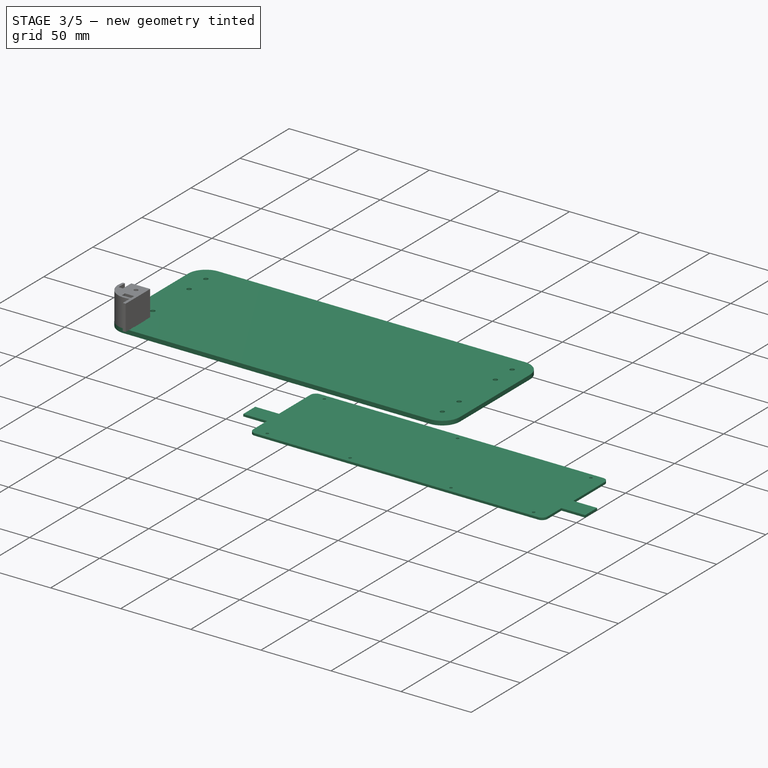
[diagram: stage 3 of 5 — iso view after this stage's code; geometry added in this stage tinted green]
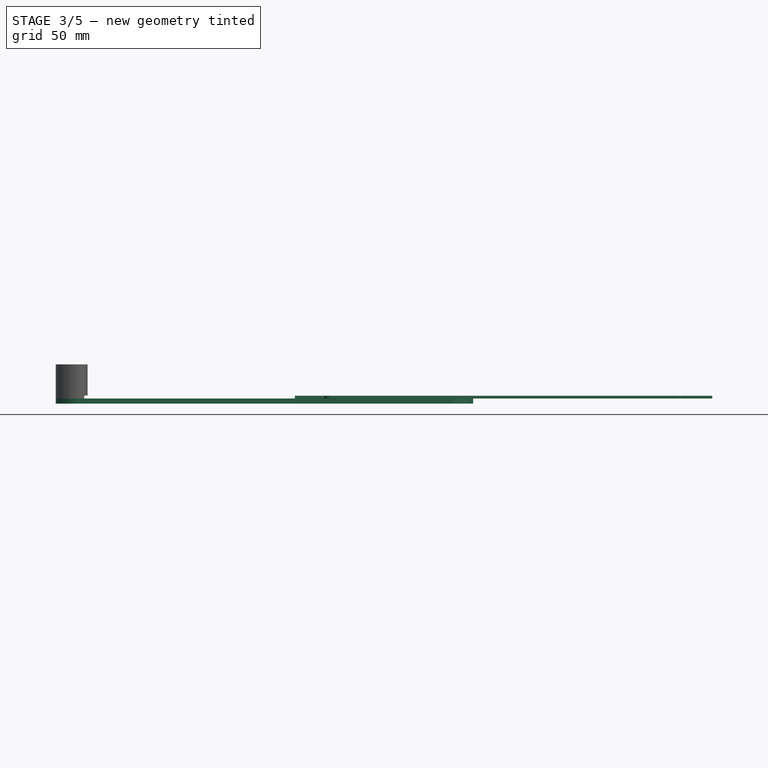
[diagram: stage 3 of 5 — front view after this stage's code; geometry added in this stage tinted green]
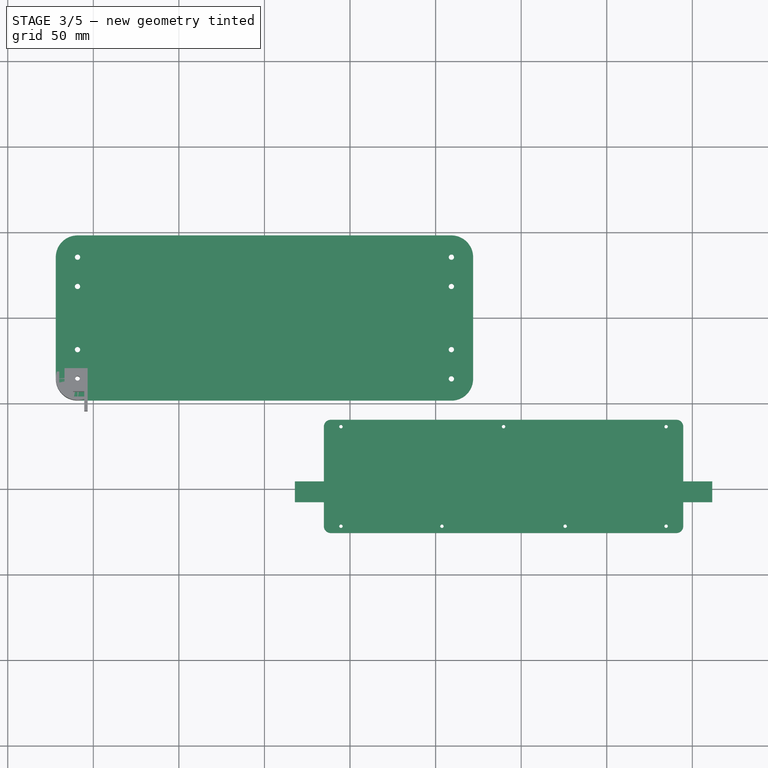
[diagram: stage 3 of 5 — top view after this stage's code; geometry added in this stage tinted green]
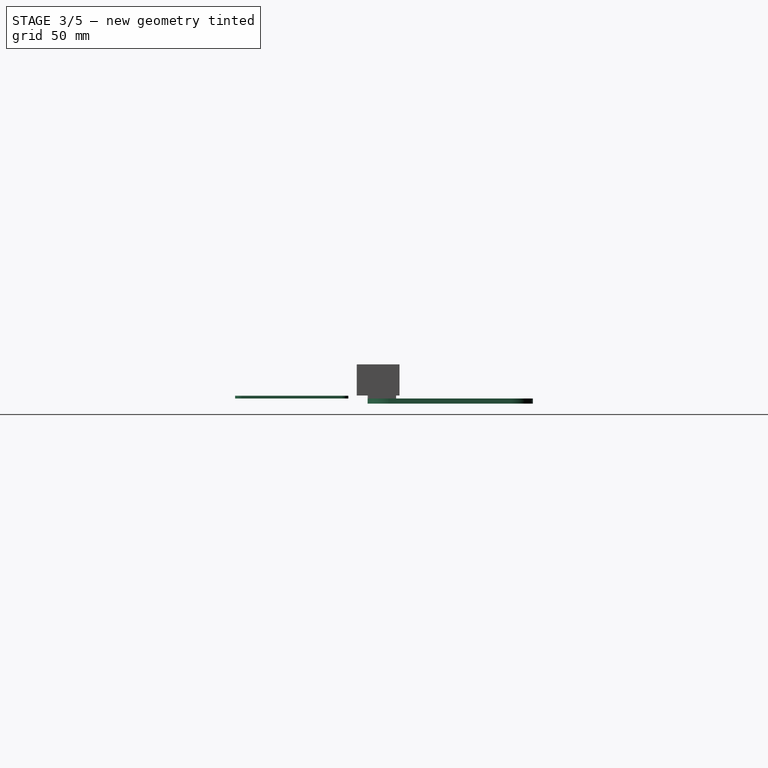
[diagram: stage 3 of 5 — right view after this stage's code; geometry added in this stage tinted green]
FEATURE [Sketcher::SketchObject] Sketch
  MapMode = 5
  Support = -> [XY_Plane]
  sketch-geometry (16):
    g0: LineSegment StartX=-109.22 StartY=48.26 StartZ=0 EndX=109.22 EndY=48.26 EndZ=0
    g1: LineSegment StartX=121.92 StartY=35.56 StartZ=0 EndX=121.92 EndY=-35.56 EndZ=0
    g2: LineSegment StartX=109.22 StartY=-48.26 StartZ=0 EndX=-109.22 EndY=-48.26 EndZ=0
    g3: LineSegment StartX=-121.92 StartY=-35.56 StartZ=0 EndX=-121.92 EndY=35.56 EndZ=0
    g4: ArcOfCircle CenterX=-109.22 CenterY=35.56 CenterZ=0 NormalX=0 NormalY=0 NormalZ=1 AngleXU=0 Radius=12.7 StartAngle=1.5708 EndAngle=3.14159
    g5: ArcOfCircle CenterX=-109.22 CenterY=-35.56 CenterZ=0 NormalX=0 NormalY=0 NormalZ=1 AngleXU=0 Radius=12.7 StartAngle=3.14159 EndAngle=4.71239
    g6: ArcOfCircle CenterX=109.22 CenterY=-35.56 CenterZ=0 NormalX=0 NormalY=0 NormalZ=1 AngleXU=0 Radius=12.7 StartAngle=4.71239 EndAngle=6.28319
    g7: ArcOfCircle CenterX=109.22 CenterY=35.56 CenterZ=0 NormalX=0 NormalY=0 NormalZ=1 AngleXU=0 Radius=12.7 StartAngle=0 EndAngle=1.5708
    g8: Circle CenterX=-109.22 CenterY=35.56 CenterZ=0 NormalX=0 NormalY=0 NormalZ=1 AngleXU=0 Radius=1.55
    g9: Circle CenterX=-109.22 CenterY=-35.56 CenterZ=0 NormalX=0 NormalY=0 NormalZ=1 AngleXU=0 Radius=1.55
    g10: Circle CenterX=109.22 CenterY=35.56 CenterZ=0 NormalX=0 NormalY=0 NormalZ=1 AngleXU=0 Radius=1.55
    g11: Circle CenterX=109.22 CenterY=-35.56 CenterZ=0 NormalX=0 NormalY=0 NormalZ=1 AngleXU=0 Radius=1.55
    g12: Circle CenterX=-109.22 CenterY=-18.46 CenterZ=0 NormalX=0 NormalY=0 NormalZ=1 AngleXU=0 Radius=1.55
    g13: Circle CenterX=-109.22 CenterY=18.46 CenterZ=0 NormalX=0 NormalY=0 NormalZ=1 AngleXU=0 Radius=1.55
    g14: Circle CenterX=109.22 CenterY=18.46 CenterZ=0 NormalX=0 NormalY=0 NormalZ=1 AngleXU=0 Radius=1.55
    g15: Circle CenterX=109.22 CenterY=-18.46 CenterZ=0 NormalX=0 NormalY=0 NormalZ=1 AngleXU=0 Radius=1.55
  constraints (38):
    c: Horizontal(g0)
    c: Horizontal(g2)
    c: Vertical(g1)
    c: Vertical(g3)
    c: Tangent(g0,g4) = 1.5708
    c: Tangent(g3,g4) = 1.5708
    c: Tangent(g3,g5) = 1.5708
    c: Tangent(g2,g5) = 1.5708
    c: Tangent(g2,g6) = 1.5708
    c: Tangent(g1,g6) = 1.5708
    c: Tangent(g1,g7) = 1.5708
    c: Tangent(g0,g7) = 1.5708
    c: Equal(g5,g6)
    c: DistanceX(g3,g1) = 243.84
    c: DistanceY(g2,g0) = 96.52
    c: Radius(g4) = 12.7
    c: Symmetric(g3,g1,g-2)
    c: Symmetric(g0,g2,g-1)
    c: Coincident(g8,g4)
    c: Coincident(g9,g5)
    c: Coincident(g10,g7)
    c: Coincident(g11,g6)
    c: Radius(g9) = 1.55
    c: Equal(g9,g8)
    c: Equal(g9,g10)
    c: Equal(g9,g11)
    c: Equal(g15,g14)
    c: Equal(g14,g13)
    c: Equal(g13,g12)
    c: Equal(g12,g9)
    c: DistanceX(g12,g5) = 0
    c: DistanceY(g5,g12) = 17.1
    c: DistanceX(g4,g13) = 0
    c: DistanceY(g13,g4) = 17.1
    c: DistanceX(g6,g15) = 0
    c: DistanceY(g6,g15) = 17.1
    c: DistanceX(g7,g14) = 0
    c: DistanceY(g14,g7) = 17.1
FEATURE [PartDesign::Pad] Pad
  Direction = (1,1,1)
  Length = 3
  Length2 = 100
  Profile = -> Sketch
  Reversed = true
  Type = 0
FEATURE [PartDesign::Body] Body002  label="ACR_FRNT"
  Group = -> [Sketch002,Pad002]
  Origin = -> Origin002
  Placement = pos=(0,-6,1.6) rot=(0,0,1;0rad)
  Tip = -> Pad002
FEATURE [Sketcher::SketchObject] Sketch003
  MapMode = 5
  Support = -> [XY_Plane003]
  sketch-geometry (12):
    g0: ArcOfCircle CenterX=-109.22 CenterY=-35.56 CenterZ=0 NormalX=0 NormalY=0 NormalZ=1 AngleXU=0 Radius=12.7 StartAngle=2.82779 EndAngle=5.02619
    g1: LineSegment StartX=-121.3 StartY=-31.6398 StartZ=0 EndX=-119.9 EndY=-31.6398 EndZ=0
    g2: LineSegment StartX=-116.8 StartY=-31.6398 StartZ=0 EndX=-116.8 EndY=-38.1398 EndZ=0
    g3: LineSegment StartX=-116.8 StartY=-38.1398 StartZ=0 EndX=-119.9 EndY=-38.1398 EndZ=0
    g4: LineSegment StartX=-119.9 StartY=-38.1398 StartZ=0 EndX=-119.9 EndY=-31.6398 EndZ=0
    g5: LineSegment StartX=-105.3 StartY=-43.1398 StartZ=0 EndX=-111.8 EndY=-43.1398 EndZ=0
    g6: LineSegment StartX=-111.8 StartY=-43.1398 StartZ=0 EndX=-111.8 EndY=-46.2398 EndZ=0
    g7: LineSegment StartX=-111.8 StartY=-46.2398 StartZ=0 EndX=-105.3 EndY=-46.2398 EndZ=0
    g8: LineSegment StartX=-105.3 StartY=-46.2398 StartZ=0 EndX=-105.3 EndY=-47.6398 EndZ=0
    g9: LineSegment StartX=-116.8 StartY=-31.6398 StartZ=0 EndX=-105.3 EndY=-31.6398 EndZ=0
    g10: LineSegment StartX=-105.3 StartY=-31.6398 StartZ=0 EndX=-105.3 EndY=-43.1398 EndZ=0
    g11: Circle CenterX=-109.22 CenterY=-35.56 CenterZ=0 NormalX=0 NormalY=0 NormalZ=1 AngleXU=0 Radius=1.4
  constraints (32):
    c: Horizontal(g1)
    c: Coincident(g0,g1)
    c: Coincident(g0,g8)
    c: DistanceX(g1,g9) = 16
    c: Coincident(g2,g3)
    c: Coincident(g3,g4)
    c: Horizontal(g3)
    c: Vertical(g2)
    c: Vertical(g4)
    c: Coincident(g5,g6)
    c: Coincident(g6,g7)
    c: Horizontal(g5)
    c: Horizontal(g7)
    c: Vertical(g6)
    c: Equal(g6,g3)
    c: DistanceY(g6,g6) = 3.1
    c: Equal(g2,g5)
    c: Coincident(g8,g7)
    c: Coincident(g1,g4)
    c: Coincident(g9,g2)
    c: Tangent(g1,g9)
    c: DistanceY(g0,g9) = 16
    c: DistanceX(g2,g9) = 11.5
    c: DistanceY(g2,g2) = 6.5
    c: Coincident(g10,g9)
    c: Coincident(g10,g5)
    c: Vertical(g10)
    c: DistanceY(g5,g9) = 11.5
    c: Vertical(g8)
    c: Equal(g5,g7)
    c: Coincident(g11,g0)
    c: Radius(g11) = 1.4
FEATURE [PartDesign::ShapeBinder] ShapeBinder
  Support = -> [Pad]
  TraceSupport = false
FEATURE [PartDesign::Pad] Pad003
  Direction = (1,1,1)
  Length = 20
  Length2 = 100
  Profile = -> Sketch003
  Type = 0
FEATURE [Sketcher::SketchObject] Sketch008
  ExternalGeometry = -> [Pad003]
  MapMode = 5
  Placement = pos=(0,0,20) rot=(0,0,1;0rad)
  Support = -> [Pad003]
  sketch-geometry (6):
    g0: LineSegment StartX=-116.8 StartY=-31.6398 StartZ=0 EndX=-105.3 EndY=-31.6398 EndZ=0
    g1: LineSegment StartX=-105.3 StartY=-31.6398 StartZ=0 EndX=-105.3 EndY=-43.1398 EndZ=0
    g2: LineSegment StartX=-105.3 StartY=-43.1398 StartZ=0 EndX=-103.3 EndY=-43.1398 EndZ=0
    g3: LineSegment StartX=-103.3 StartY=-43.1398 StartZ=0 EndX=-103.3 EndY=-29.6398 EndZ=0
    g4: LineSegment StartX=-103.3 StartY=-29.6398 StartZ=0 EndX=-116.8 EndY=-29.6398 EndZ=0
    g5: LineSegment StartX=-116.8 StartY=-29.6398 StartZ=0 EndX=-116.8 EndY=-31.6398 EndZ=0
  constraints (16):
    c: Coincident(g0,g1)
    c: Vertical(g1)
    c: Coincident(g1,g2)
    c: Horizontal(g2)
    c: Coincident(g2,g3)
    c: Vertical(g3)
    c: Coincident(g3,g4)
    c: Horizontal(g4)
    c: Coincident(g4,g5)
    c: Coincident(g5,g0)
    c: Vertical(g5)
    c: Equal(g5,g2)
    c: Equal(g0,g1)
    c: DistanceY(g5,g5) = 2
    c: Coincident(g0,g-3)
    c: Coincident(g0,g-3)
FEATURE [PartDesign::Pad] Pad008
  BaseFeature = -> Pad003
  Direction = (1,1,1)
  Length = 18.2
  Length2 = 100
  Profile = -> Sketch008
  Refine = true
  Reversed = true
  Type = 0
FEATURE [Sketcher::SketchObject] PCB_Sketch_a345
  sketch-geometry (26):
    g0: LineSegment StartX=139.7 StartY=-59.5 StartZ=0 EndX=240.7 EndY=-59.5 EndZ=0
    g1: LineSegment StartX=244.7 StartY=-95.5 StartZ=0 EndX=244.7 EndY=-63.5 EndZ=0
    g2: LineSegment StartX=244.7 StartY=-95.5 StartZ=0 EndX=261.62 EndY=-95.5 EndZ=0
    g3: LineSegment StartX=261.62 StartY=-107.692 StartZ=0 EndX=261.62 EndY=-95.5 EndZ=0
    g4: LineSegment StartX=244.7 StartY=-107.692 StartZ=0 EndX=261.62 EndY=-107.692 EndZ=0
    g5: LineSegment StartX=244.7 StartY=-107.692 StartZ=0 EndX=244.7 EndY=-121.692 EndZ=0
    g6: LineSegment StartX=139.7 StartY=-125.692 StartZ=0 EndX=240.7 EndY=-125.692 EndZ=0
    g7: LineSegment StartX=38.7 StartY=-125.692 StartZ=0 EndX=139.7 EndY=-125.692 EndZ=0
    g8: LineSegment StartX=34.7 StartY=-107.692 StartZ=0 EndX=34.7 EndY=-121.692 EndZ=0
    g9: LineSegment StartX=17.78 StartY=-107.692 StartZ=0 EndX=34.7 EndY=-107.692 EndZ=0
    g10: LineSegment StartX=38.7 StartY=-59.5 StartZ=0 EndX=139.7 EndY=-59.5 EndZ=0
    g11: LineSegment StartX=34.7 StartY=-95.5 StartZ=0 EndX=34.7 EndY=-63.5 EndZ=0
    g12: LineSegment StartX=17.78 StartY=-95.5 StartZ=0 EndX=34.7 EndY=-95.5 EndZ=0
    g13: LineSegment StartX=17.78 StartY=-107.692 StartZ=0 EndX=17.78 EndY=-95.5 EndZ=0
    g14: Circle CenterX=103.7 CenterY=-121.692 CenterZ=0 NormalX=0 NormalY=0 NormalZ=1 AngleXU=0 Radius=1
    g15: Circle CenterX=44.7 CenterY=-121.692 CenterZ=0 NormalX=0 NormalY=0 NormalZ=1 AngleXU=0 Radius=1
    g16: Circle CenterX=175.7 CenterY=-121.692 CenterZ=0 NormalX=0 NormalY=0 NormalZ=1 AngleXU=0 Radius=1
    g17: Circle CenterX=234.7 CenterY=-121.692 CenterZ=0 NormalX=0 NormalY=0 NormalZ=1 AngleXU=0 Radius=1
    g18: Circle CenterX=44.7 CenterY=-63.5 CenterZ=0 NormalX=0 NormalY=0 NormalZ=1 AngleXU=0 Radius=1
    g19: Circle CenterX=234.7 CenterY=-63.5 CenterZ=0 NormalX=0 NormalY=0 NormalZ=1 AngleXU=0 Radius=1
    g20: Circle CenterX=139.7 CenterY=-63.5 CenterZ=0 NormalX=0 NormalY=0 NormalZ=1 AngleXU=0 Radius=1
    g21: LineSegment [constr] StartX=139.7 StartY=-59.5 StartZ=0 EndX=139.7 EndY=-125.692 EndZ=0
    g22: ArcOfCircle CenterX=38.7 CenterY=-63.5 CenterZ=0 NormalX=0 NormalY=0 NormalZ=1 AngleXU=0 Radius=4 StartAngle=1.5708 EndAngle=3.14159
    g23: ArcOfCircle CenterX=240.7 CenterY=-63.5 CenterZ=0 NormalX=0 NormalY=0 NormalZ=1 AngleXU=0 Radius=4 StartAngle=-9e-16 EndAngle=1.5708
    g24: ArcOfCircle CenterX=38.7 CenterY=-121.692 CenterZ=0 NormalX=0 NormalY=0 NormalZ=1 AngleXU=0 Radius=4 StartAngle=3.14159 EndAngle=4.71239
    g25: ArcOfCircle CenterX=240.7 CenterY=-121.692 CenterZ=0 NormalX=0 NormalY=0 NormalZ=1 AngleXU=0 Radius=4 StartAngle=4.71239 EndAngle=6.28319
  constraints (72):
    c: Coincident(g13,g9)
    c: Coincident(g13,g12)
    c: Coincident(g8,g9)
    c: Coincident(g12,g11)
    c: Coincident(g6,g7)
    c: Coincident(g0,g10)
    c: Coincident(g4,g5)
    c: Coincident(g1,g2)
    c: Coincident(g3,g4)
    c: Coincident(g2,g3)
    c: Equal(g13,g3)
    c: Equal(g9,g4)
    c: Coincident(g21,g0)
    c: Coincident(g21,g6)
    c: Horizontal(g10)
    c: Horizontal(g0)
    c: Horizontal(g6)
    c: Horizontal(g7)
    c: Horizontal(g12)
    c: Horizontal(g9)
    c: Vertical(g13)
    c: Vertical(g11)
    c: Vertical(g8)
    c: Vertical(g1)
    c: Vertical(g5)
    c: Horizontal(g2)
    c: Horizontal(g4)
    c: DistanceX(g12,g2) = 243.84
    c: DistanceY(g13,g13) = 12.192
    c: DistanceX(g-2,g6) = 139.7
    c: DistanceY(g-1,g12) = -95.5
    c: Equal(g10,g0)
    c: Equal(g0,g6)
    c: Equal(g6,g7)
    c: DistanceX(g11,g1) = 210
    c: Equal(g1,g11)
    c: Equal(g15,g18)
    c: Equal(g18,g14)
    c: Equal(g14,g20)
    c: Equal(g20,g16)
    c: Equal(g16,g19)
    c: Equal(g19,g17)
    c: Diameter(g20) = 2
    c: Tangent(g10,g22) = 1.5708
    c: Tangent(g11,g22) = 1.5708
    c: Tangent(g0,g23) = 1.5708
    c: Tangent(g1,g23) = -1.5708
    c: Radius(g23) = 4
    c: Equal(g23,g22)
    c: Distance(g11,g10) = 36
    c: Vertical(g21)
    c: Vertical(g3)
    c: Tangent(g8,g24) = -1.5708
    c: Tangent(g7,g24) = -1.5708
    c: Tangent(g6,g25) = -1.5708
    c: Tangent(g5,g25) = 1.5708
    c: Equal(g25,g24)
    c: Distance(g8,g7) = 18
    c: Distance(g15,g8) = 10
    c: Distance(g15,g7) = 4
    c: Equal(g25,g23)
    c: Distance(g18,g11) = 10
    c: Distance(g18,g10) = 4
    c: Distance(g19,g0) = 4
    c: Distance(g19,g1) = 10
    c: Distance(g17,g5) = 10
    c: Distance(g17,g6) = 4
    c: Distance(g20,g10) = 4
    c: PointOnObject(g20,g21)
    c: Symmetric(g14,g16,g21)
    c: Distance(g14,g7) = 4
    c: Distance(g14,g21) = 36
FEATURE [PartDesign::Pad] Pad009
  Direction = (1,1,1)
  Length = 1.6
  Length2 = 100
  Profile = -> PCB_Sketch_a345
  Type = 0
FEATURE [Sketcher::SketchObject] Sketch011
  ExternalGeometry = -> [Pad011]
  MapMode = 5
  Placement = pos=(0,0,20) rot=(0,0,1;0rad)
  Support = -> [Pad011]
  sketch-geometry (6):
    g0: LineSegment StartX=-116.8 StartY=-31.6398 StartZ=0 EndX=-105.3 EndY=-31.6398 EndZ=0
    g1: LineSegment StartX=-105.3 StartY=-31.6398 StartZ=0 EndX=-105.3 EndY=-43.1398 EndZ=0
    g2: LineSegment StartX=-105.3 StartY=-43.1398 StartZ=0 EndX=-103.3 EndY=-43.1398 EndZ=0
    g3: LineSegment StartX=-103.3 StartY=-43.1398 StartZ=0 EndX=-103.3 EndY=-29.6398 EndZ=0
    g4: LineSegment StartX=-103.3 StartY=-29.6398 StartZ=0 EndX=-116.8 EndY=-29.6398 EndZ=0
    g5: LineSegment StartX=-116.8 StartY=-29.6398 StartZ=0 EndX=-116.8 EndY=-31.6398 EndZ=0
  constraints (16):
    c: Coincident(g0,g1)
    c: Vertical(g1)
    c: Coincident(g1,g2)
    c: Horizontal(g2)
    c: Coincident(g2,g3)
    c: Vertical(g3)
    c: Coincident(g3,g4)
    c: Horizontal(g4)
    c: Coincident(g4,g5)
    c: Coincident(g5,g0)
    c: Vertical(g5)
    c: Equal(g5,g2)
    c: Equal(g0,g1)
    c: DistanceY(g5,g5) = 2
    c: Coincident(g0,g-3)
    c: Coincident(g0,g-3)
FEATURE [PartDesign::Pad] Pad012
  BaseFeature = -> Pad011
  Direction = (1,1,1)
  Length = 18.2
  Length2 = 100
  Profile = -> Sketch011
  Refine = true
  Reversed = true
  Type = 0
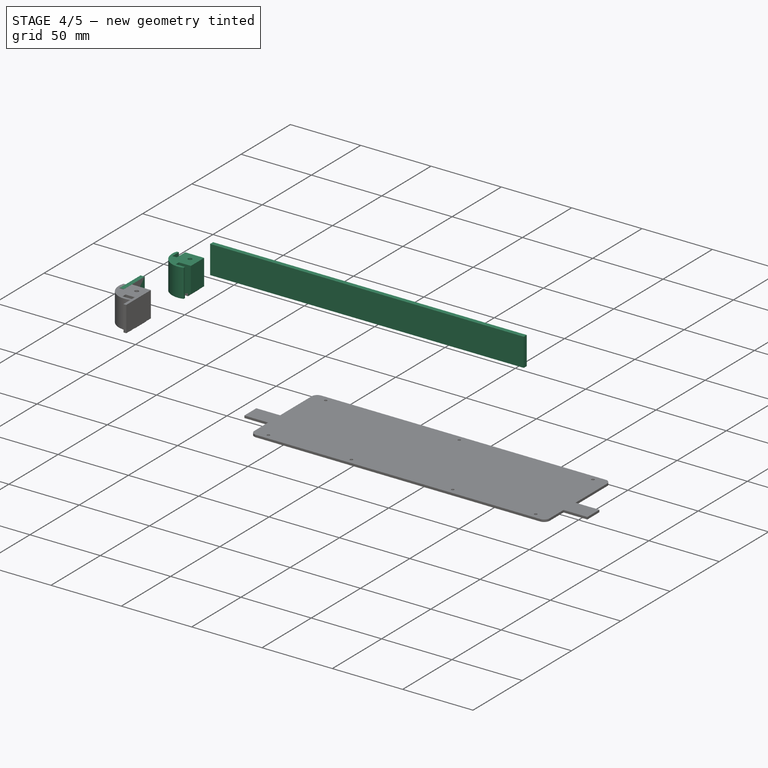
[diagram: stage 4 of 5 — iso view after this stage's code; geometry added in this stage tinted green]
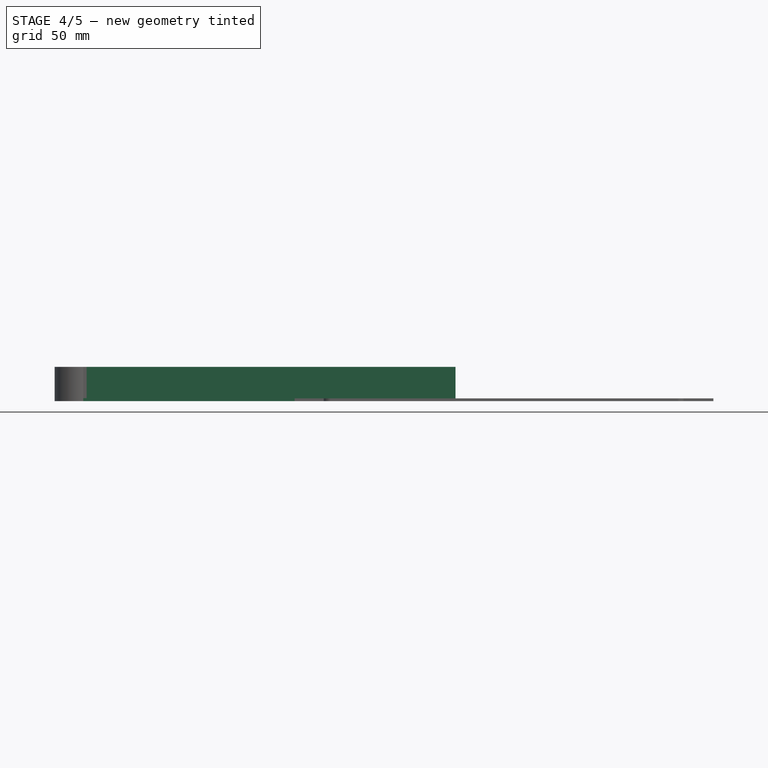
[diagram: stage 4 of 5 — front view after this stage's code; geometry added in this stage tinted green]
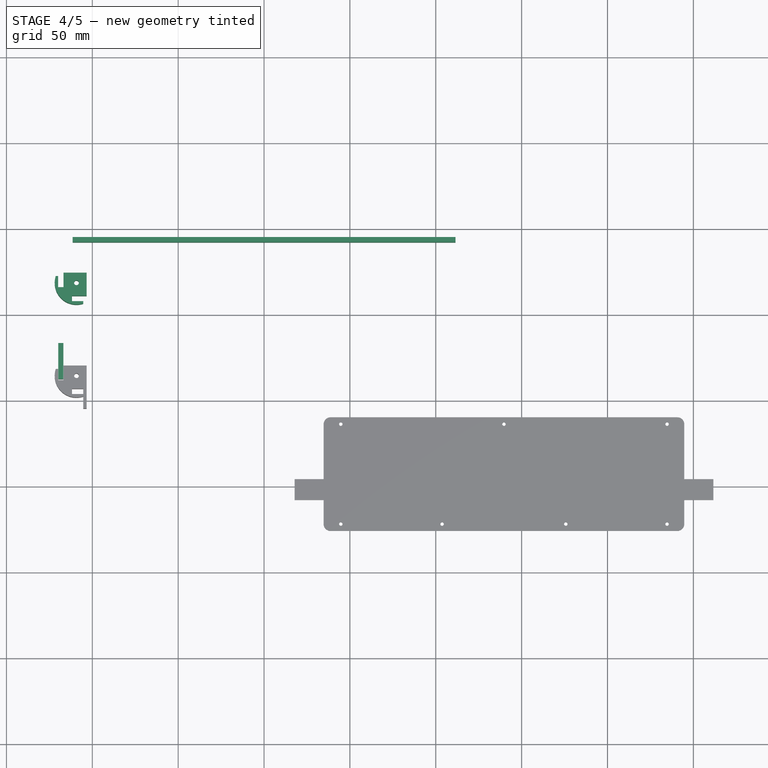
[diagram: stage 4 of 5 — top view after this stage's code; geometry added in this stage tinted green]
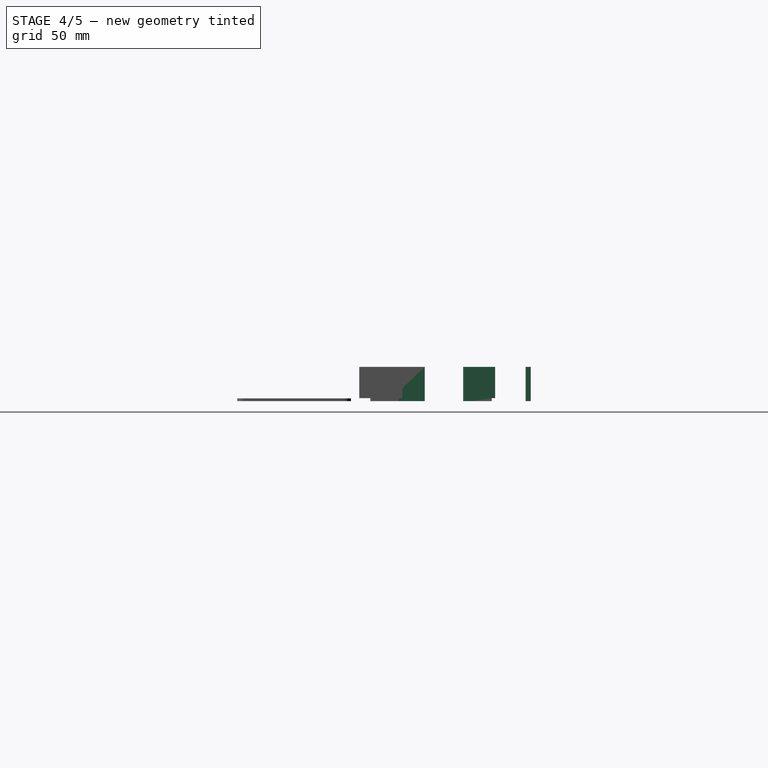
[diagram: stage 4 of 5 — right view after this stage's code; geometry added in this stage tinted green]
FEATURE [PartDesign::ShapeBinder] ShapeBinder001
  Placement = pos=(0,0,20) rot=(0,0,1;0rad)
  TraceSupport = false
FEATURE [PartDesign::ShapeBinder] ShapeBinder002
  Placement = pos=(0,0,20) rot=(0,0,1;0rad)
  Support = -> [Pad003]
  TraceSupport = false
FEATURE [Sketcher::SketchObject] Sketch005
  ExternalGeometry = -> [ShapeBinder001,ShapeBinder002]
  MapMode = 5
  Support = -> [XY_Plane005]
  sketch-geometry (8):
    g0: LineSegment StartX=-119.85 StartY=-16.55 StartZ=0 EndX=-116.85 EndY=-16.55 EndZ=0
    g1: LineSegment StartX=-116.85 StartY=-16.55 StartZ=0 EndX=-116.85 EndY=-37.55 EndZ=0
    g2: LineSegment StartX=-116.85 StartY=-37.55 StartZ=0 EndX=-119.85 EndY=-37.55 EndZ=0
    g3: LineSegment StartX=-119.85 StartY=-37.55 StartZ=0 EndX=-119.85 EndY=-16.55 EndZ=0
    g4: LineSegment [constr] StartX=-119.9 StartY=-38.1398 StartZ=0 EndX=-119.85 EndY=-37.55 EndZ=0
    g5: LineSegment [constr] StartX=-116.8 StartY=-38.1398 StartZ=0 EndX=-116.85 EndY=-37.55 EndZ=0
    g6: LineSegment [constr] StartX=-119.9 StartY=-15.9602 StartZ=0 EndX=-119.85 EndY=-16.55 EndZ=0
    g7: LineSegment [constr] StartX=-116.8 StartY=-15.9602 StartZ=0 EndX=-116.85 EndY=-16.55 EndZ=0
  constraints (20):
    c: Coincident(g0,g1)
    c: Coincident(g1,g2)
    c: Coincident(g2,g3)
    c: Coincident(g3,g0)
    c: Horizontal(g0)
    c: Horizontal(g2)
    c: Vertical(g1)
    c: DistanceX(g2,g2) = 3
    c: Coincident(g4,g-4)
    c: Coincident(g4,g2)
    c: Coincident(g5,g-4)
    c: Coincident(g5,g1)
    c: Coincident(g6,g-3)
    c: Coincident(g6,g0)
    c: Coincident(g7,g-3)
    c: Coincident(g7,g0)
    c: Equal(g6,g7)
    c: Equal(g7,g5)
    c: Equal(g5,g4)
    c: DistanceY(g3,g3) = 21
FEATURE [PartDesign::Pad] Pad005
  Direction = (1,1,1)
  Length = 20
  Length2 = 100
  Profile = -> Sketch005
  Type = 0
FEATURE [PartDesign::Body] Body005  label="ACR_Side_FL"
  Group = -> [Sketch005,ShapeBinder001,ShapeBinder002,Pad005]
  Origin = -> Origin005
  Tip = -> Pad005
FEATURE [PartDesign::ShapeBinder] ShapeBinder004
  Placement = pos=(0,0,20) rot=(0,0,1;0rad)
  TraceSupport = false
FEATURE [PartDesign::ShapeBinder] ShapeBinder005
  Placement = pos=(0,0,20) rot=(0,0,1;0rad)
  Support = -> [Pad003]
  TraceSupport = false
FEATURE [Sketcher::SketchObject] Sketch006
  ExternalGeometry = -> [ShapeBinder005,ShapeBinder004]
  MapMode = 5
  Support = -> [XY_Plane006]
  sketch-geometry (8):
    g0: LineSegment StartX=-111.5 StartY=-46.1898 StartZ=0 EndX=111.5 EndY=-46.1898 EndZ=0
    g1: LineSegment StartX=111.5 StartY=-46.1898 StartZ=0 EndX=111.5 EndY=-43.1898 EndZ=0
    g2: LineSegment StartX=111.5 StartY=-43.1898 StartZ=0 EndX=-111.5 EndY=-43.1898 EndZ=0
    g3: LineSegment StartX=-111.5 StartY=-43.1898 StartZ=0 EndX=-111.5 EndY=-46.1898 EndZ=0
    g4: LineSegment [constr] StartX=111.5 StartY=-43.1898 StartZ=0 EndX=111.8 EndY=-43.1398 EndZ=0
    g5: LineSegment [constr] StartX=111.5 StartY=-46.1898 StartZ=0 EndX=111.8 EndY=-46.2398 EndZ=0
    g6: LineSegment [constr] StartX=-111.5 StartY=-46.1898 StartZ=0 EndX=-111.8 EndY=-46.2398 EndZ=0
    g7: LineSegment [constr] StartX=-111.5 StartY=-43.1898 StartZ=0 EndX=-111.8 EndY=-43.1398 EndZ=0
  constraints (20):
    c: Coincident(g0,g1)
    c: Coincident(g1,g2)
    c: Coincident(g2,g3)
    c: Coincident(g3,g0)
    c: Horizontal(g0)
    c: Horizontal(g2)
    c: Vertical(g1)
    c: Coincident(g4,g1)
    c: Coincident(g4,g-4)
    c: Coincident(g5,g0)
    c: Coincident(g5,g-4)
    c: Coincident(g6,g0)
    c: Coincident(g6,g-3)
    c: Coincident(g7,g2)
    c: Coincident(g7,g-3)
    c: Equal(g6,g7)
    c: Equal(g7,g4)
    c: Equal(g4,g5)
    c: DistanceY(g1,g1) = 3
    c: DistanceX(g0,g0) = 223
FEATURE [PartDesign::Pad] Pad006
  Direction = (1,1,1)
  Length = 20
  Length2 = 100
  Profile = -> Sketch006
  Type = 0
FEATURE [Part::Mirroring] Part__Mirroring009  label="ACR_Side_Back"
  Base = (0,0,0)
  Normal = (0,1,0)
  Placement = pos=(0,18,0) rot=(0,0,1;0rad)
  Source = -> Body006
FEATURE [PartDesign::Body] Body003  label="Corner_FL"
  Group = -> [Sketch003,ShapeBinder,Pad003,Sketch008,Pad008]
  Origin = -> Origin003
  Tip = -> Pad008
FEATURE [Part::FeaturePython] Clone  label="Corner_FL001"  # Draft clone (typed FeaturePython)
  AttacherType = Attacher::AttachEngine3D
  Fuse = false
  Objects = -> [Body003]
  Placement = pos=(0,54.1,0) rot=(0,0,1;0rad)
  Scale = (1,1,1)
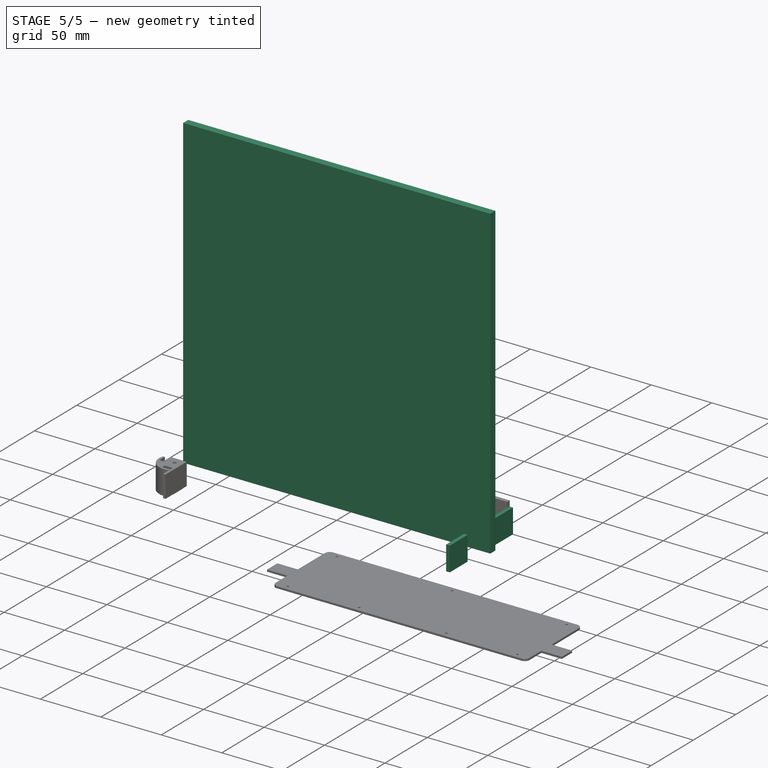
[diagram: stage 5 of 5 — iso view after this stage's code; geometry added in this stage tinted green]
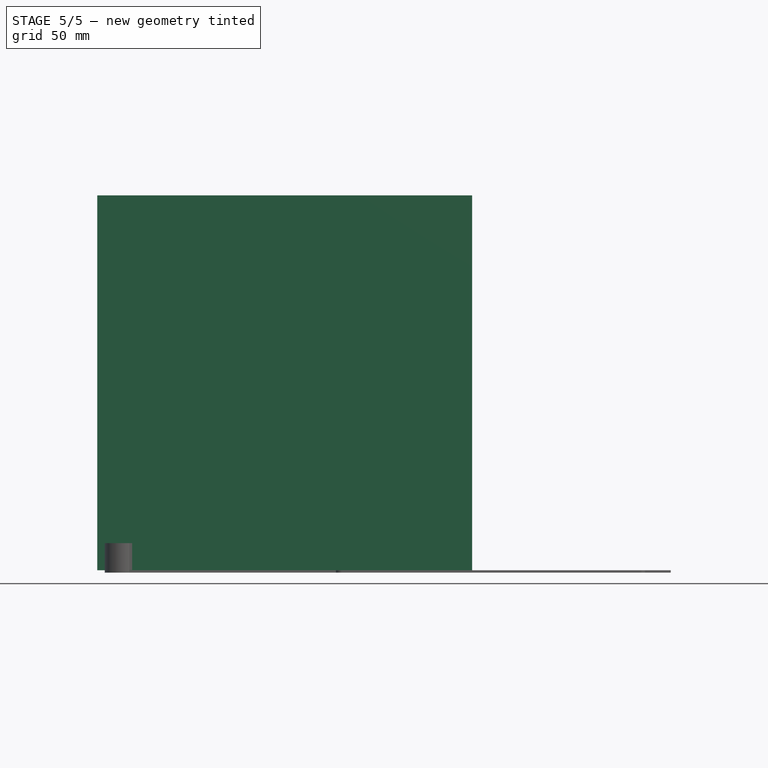
[diagram: stage 5 of 5 — front view after this stage's code; geometry added in this stage tinted green]
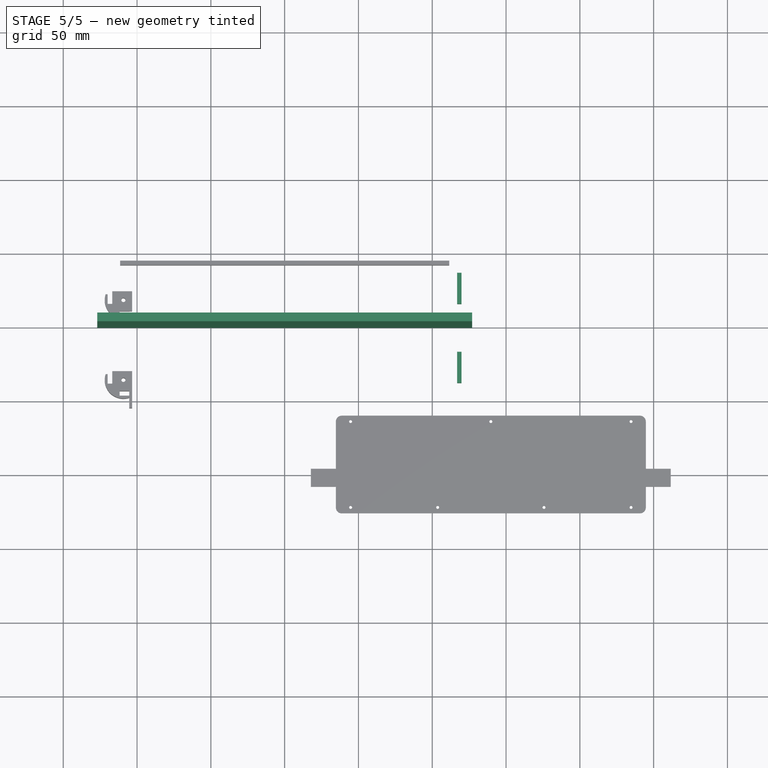
[diagram: stage 5 of 5 — top view after this stage's code; geometry added in this stage tinted green]
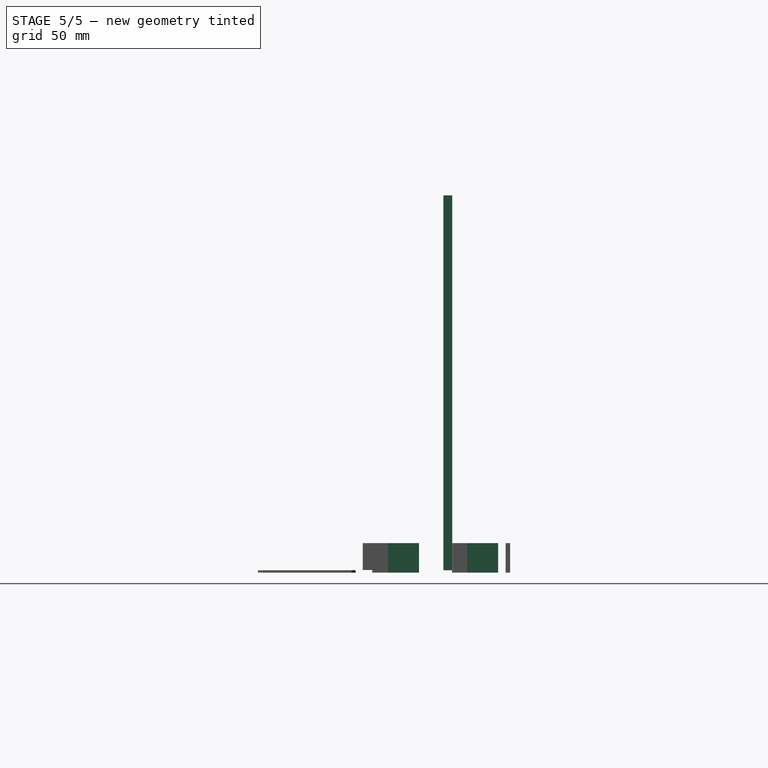
[diagram: stage 5 of 5 — right view after this stage's code; geometry added in this stage tinted green]
FEATURE [PartDesign::Body] Body  label="ACR_BOTTOM"
  Group = -> [Sketch,Pad]
  Origin = -> Origin
  Tip = -> Pad
FEATURE [Sketcher::SketchObject] Sketch001
  AttachmentOffset = pos=(0,0,1.6) rot=(0,0,1;0rad)
  MapMode = 5
  Placement = pos=(0,0,1.6) rot=(0,0,1;0rad)
  Support = -> [XY_Plane001]
  sketch-geometry (4):
    g0: LineSegment StartX=-127 StartY=6 StartZ=0 EndX=127 EndY=6 EndZ=0
    g1: LineSegment StartX=127 StartY=6 StartZ=0 EndX=127 EndY=0 EndZ=0
    g2: LineSegment StartX=127 StartY=0 StartZ=0 EndX=-127 EndY=0 EndZ=0
    g3: LineSegment StartX=-127 StartY=0 StartZ=0 EndX=-127 EndY=6 EndZ=0
  constraints (11):
    c: Coincident(g0,g1)
    c: Coincident(g1,g2)
    c: Coincident(g2,g3)
    c: Coincident(g3,g0)
    c: Horizontal(g0)
    c: Vertical(g1)
    c: Vertical(g3)
    c: Symmetric(g2,g1,g-2)
    c: DistanceY(g1,g1) = 6
    c: DistanceX(g0,g0) = 254
    c: PointOnObject(g-1,g2)
FEATURE [PartDesign::Pad] Pad001
  Direction = (1,1,1)
  Length = 254
  Length2 = 100
  Profile = -> Sketch001
  Type = 0
FEATURE [PartDesign::Body] Body001  label="ACR_BACK"
  Group = -> [Sketch001,Pad001]
  Origin = -> Origin001
  Placement = pos=(0,0,1.6) rot=(0,0,1;0rad)
  Tip = -> Pad001
FEATURE [Sketcher::SketchObject] Sketch002
  AttachmentOffset = pos=(0,0,1.6) rot=(0,0,1;0rad)
  MapMode = 5
  Placement = pos=(0,0,1.6) rot=(0,0,1;0rad)
  Support = -> [XY_Plane002]
  sketch-geometry (4):
    g0: LineSegment StartX=-127 StartY=6 StartZ=0 EndX=127 EndY=6 EndZ=0
    g1: LineSegment StartX=127 StartY=6 StartZ=0 EndX=127 EndY=0 EndZ=0
    g2: LineSegment StartX=127 StartY=0 StartZ=0 EndX=-127 EndY=0 EndZ=0
    g3: LineSegment StartX=-127 StartY=0 StartZ=0 EndX=-127 EndY=6 EndZ=0
  constraints (11):
    c: Coincident(g0,g1)
    c: Coincident(g1,g2)
    c: Coincident(g2,g3)
    c: Coincident(g3,g0)
    c: Horizontal(g0)
    c: Vertical(g1)
    c: Vertical(g3)
    c: Symmetric(g2,g1,g-2)
    c: DistanceY(g1,g1) = 6
    c: DistanceX(g0,g0) = 254
    c: PointOnObject(g-1,g2)
FEATURE [PartDesign::Pad] Pad002
  Direction = (1,1,1)
  Length = 254
  Length2 = 100
  Profile = -> Sketch002
  Type = 0
FEATURE [PartDesign::Body] Body006  label="ACR_Side_Front"
  Group = -> [Sketch006,ShapeBinder004,ShapeBinder005,Pad006]
  Origin = -> Origin006
  Placement = pos=(0,19,0) rot=(0,0,1;0rad)
  Tip = -> Pad006
FEATURE [Part::Mirroring] Part__Mirroring006  label="ACR_Side_BL"
  Base = (0,0,0)
  Normal = (0,1,0)
  Placement = pos=(0,-0.5,0) rot=(0,0,1;0rad)
  Source = -> Body005
FEATURE [Part::Mirroring] Part__Mirroring007  label="ACR_Side_FR"
  Base = (0,0,0)
  Normal = (1,0,0)
  Source = -> Body005
FEATURE [Part::Mirroring] Part__Mirroring008  label="ACR_Side_BR"
  Base = (0,0,0)
  Normal = (1,0,0)
  Source = -> Part__Mirroring006
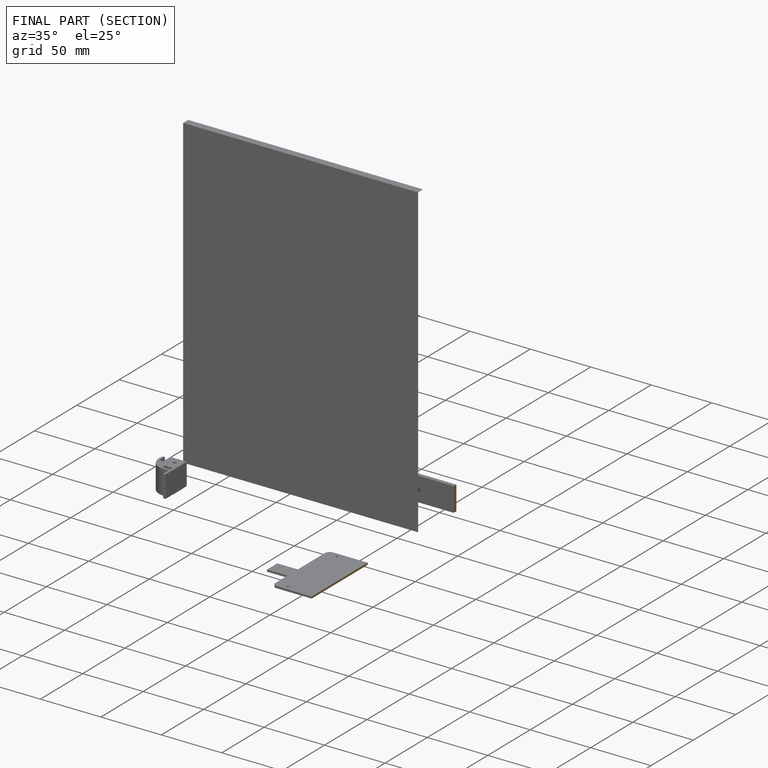
[diagram: finished part — half-section view (interior)]
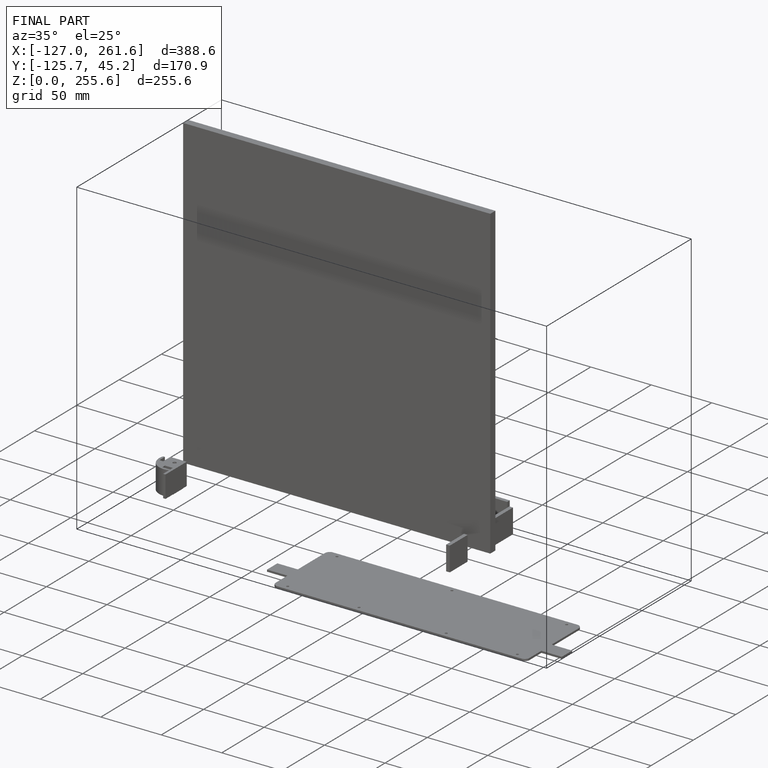
[diagram: finished part — iso view with bounding-box wireframe]
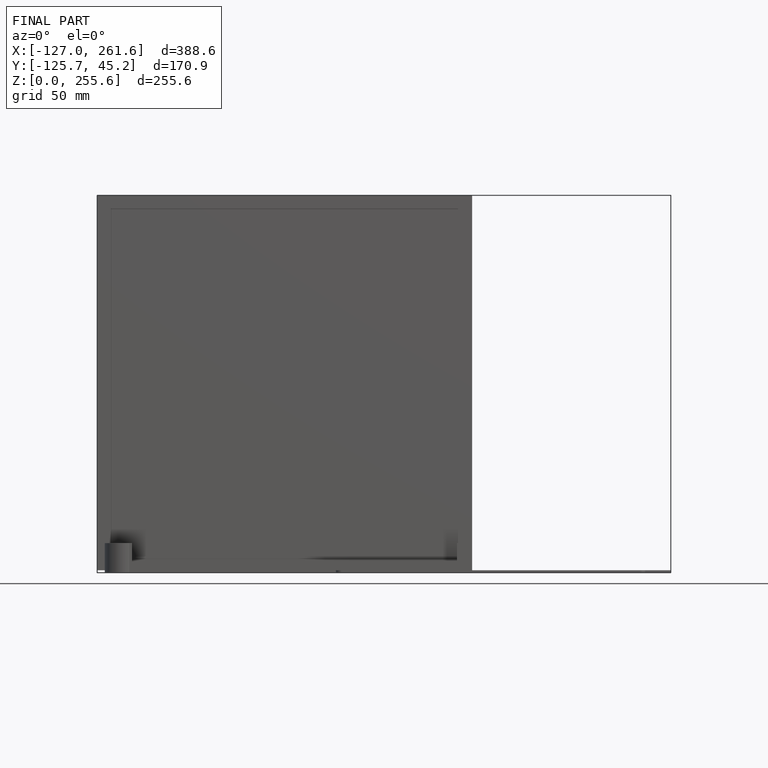
[diagram: finished part — front view with bounding-box wireframe]
